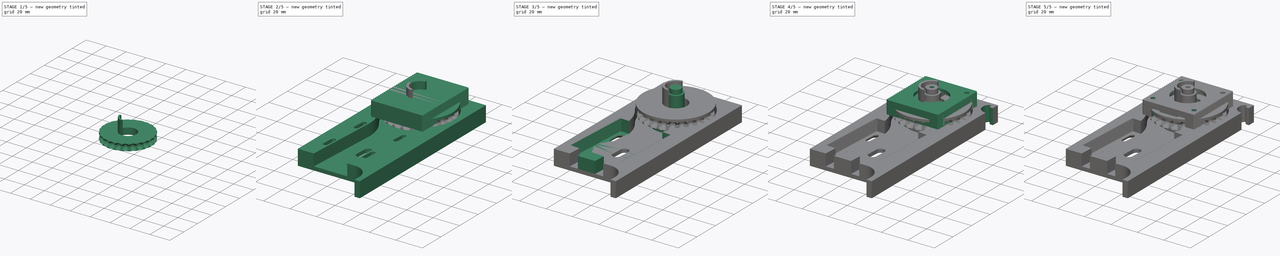
[diagram: build sequence overview — one tinted view per stage of 5, left to right]
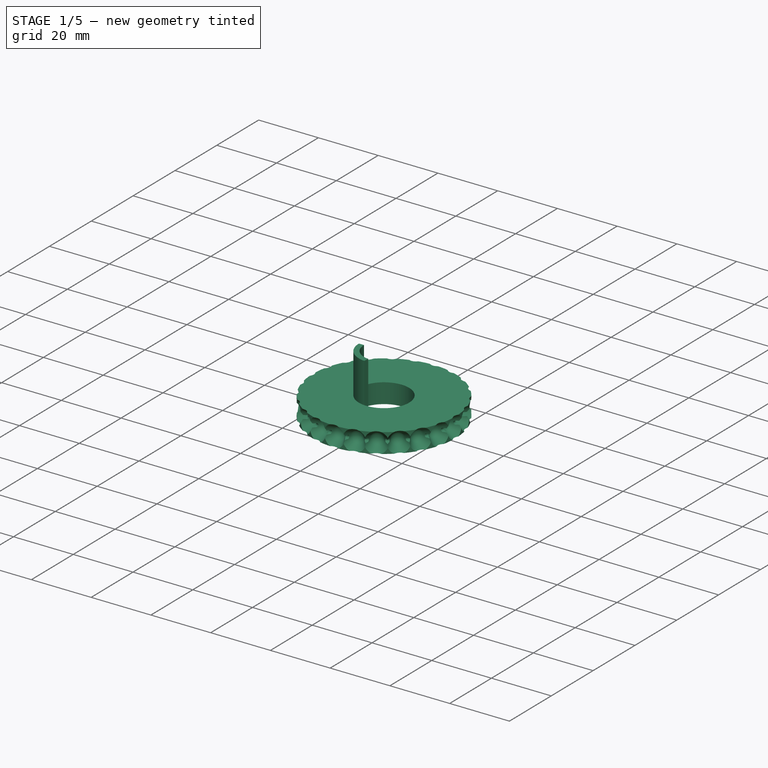
[diagram: stage 1 of 5 — iso view after this stage's code; geometry added in this stage tinted green]
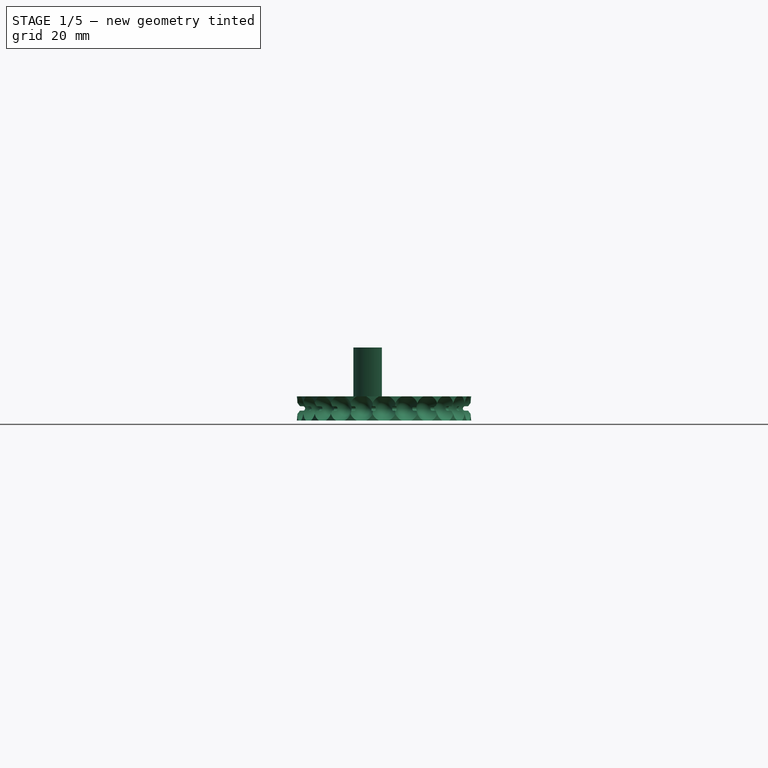
[diagram: stage 1 of 5 — front view after this stage's code; geometry added in this stage tinted green]
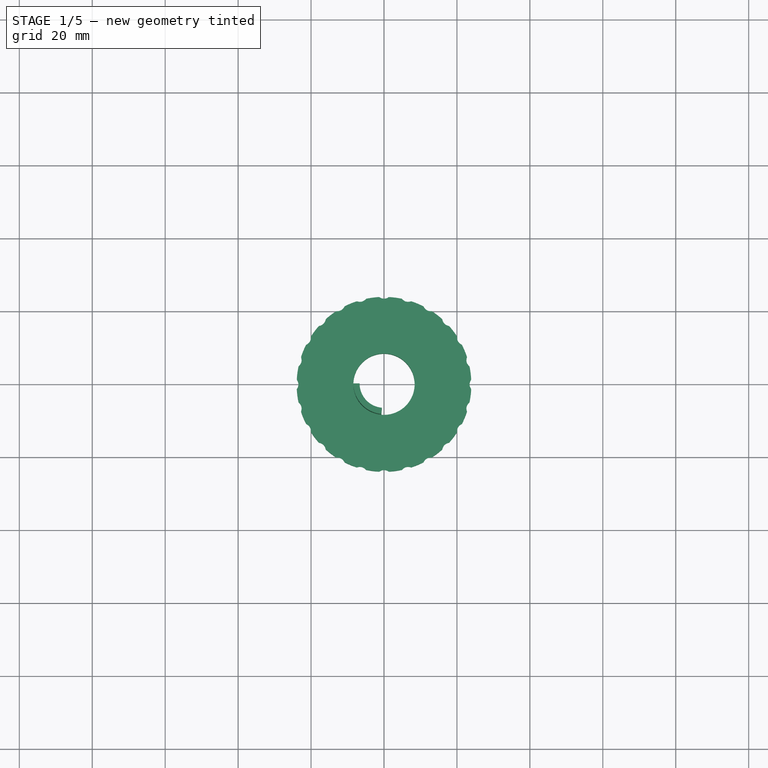
[diagram: stage 1 of 5 — top view after this stage's code; geometry added in this stage tinted green]
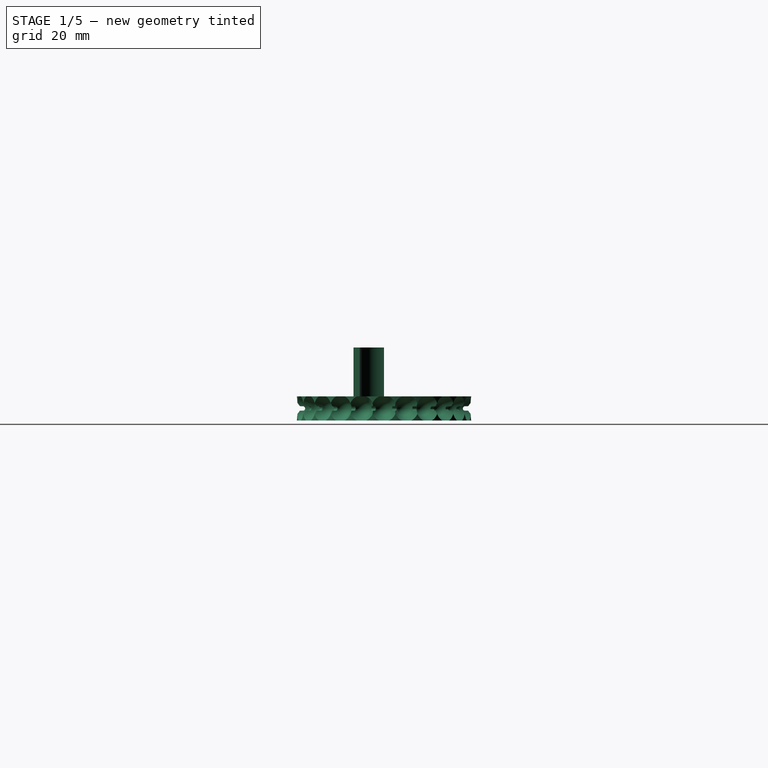
[diagram: stage 1 of 5 — right view after this stage's code; geometry added in this stage tinted green]
FCSTD DOCUMENT  (FreeCAD 0.21R33771 (Git))
Label: integrated-roller-clutch-v3
License: All rights reserved
LicenseURL: http://en.wikipedia.org/wiki/All_rights_reserved
objects: Sketcher::SketchObject×24, PartDesign::Pad×14, PartDesign::SubShapeBinder×10, PartDesign::Pocket×10, PartDesign::Mirrored×9, PartDesign::Body×5, PartDesign::Groove×4, PartDesign::MultiTransform×3, PartDesign::Fillet×2, PartDesign::PolarPattern×2, PartDesign::LinearPattern×2, PartDesign::Chamfer×1, Part::Feature×1, PartDesign::Hole×1
note: 120 computed .brp shape members not serialized (recipe doc carries the construction recipe); baked Part::Feature solids carry a one-line shape summary decoded from their .brp

FEATURE [Sketcher::SketchObject] Sketch003
  FullyConstrained = true
  MapMode = 5
  Support = -> [XY_Plane001]
  expr: Constraints[0] = 5.85 * 24 / pi
  sketch-geometry (1):
    g0: Circle CenterX=0 CenterY=0 CenterZ=0 NormalX=0 NormalY=0 NormalZ=1 AngleXU=0 Radius=22.3454
  constraints (2):
    c: Diameter(g0) = 44.6907
    c: Coincident(g0,g-1)
FEATURE [PartDesign::SubShapeBinder] Binder001
  BindCopyOnChange = 0
  BindMode = 0
  ClaimChildren = false
  Context = -> Body001 [Binder001.]
  Fuse = false
  MakeFace = true
  Offset = 1.6
  OffsetFill = false
  OffsetIntersection = false
  OffsetJoinType = 1
  OffsetOpenResult = false
  PartialLoad = false
  Relative = true
  Support = -> [Sketch003[Edge1]]
  _Version = 2
FEATURE [PartDesign::Pad] Pad
  Direction = (0,0,1)
  Length = 6.6
  Length2 = 10
  Midplane = true
  Profile = -> Binder001
  Type = 0
FEATURE [Sketcher::SketchObject] Sketch004
  ExternalGeometry = -> [Sketch003,Binder001]
  FullyConstrained = true
  MapMode = 5
  Placement = pos=(0,0,0) rot=(1,0,0;1.5708rad)
  Support = -> [XZ_Plane001]
  sketch-geometry (8):
    g0: ArcOfCircle CenterX=22.3454 CenterY=0 CenterZ=0 NormalX=0 NormalY=0 NormalZ=1 AngleXU=0 Radius=0.6 StartAngle=1.5708 EndAngle=4.71239
    g1: ArcOfCircle CenterX=23.9454 CenterY=0 CenterZ=0 NormalX=0 NormalY=0 NormalZ=1 AngleXU=0 Radius=0.6 StartAngle=4.71239 EndAngle=7.85398
    g2: LineSegment StartX=22.3454 StartY=-0.6 StartZ=0 EndX=23.9454 EndY=-0.6 EndZ=0
    g3: LineSegment StartX=23.9454 StartY=0.6 StartZ=0 EndX=22.3454 EndY=0.6 EndZ=0
    g4: ArcOfCircle CenterX=22.3454 CenterY=0 CenterZ=0 NormalX=0 NormalY=0 NormalZ=1 AngleXU=0 Radius=2.3 StartAngle=2.0944 EndAngle=3.14159
    g5: LineSegment StartX=23.9454 StartY=3.57957 StartZ=0 EndX=21.1954 EndY=1.99186 EndZ=0
    g6: LineSegment StartX=20.0454 StartY=3e-16 StartZ=0 EndX=23.9454 EndY=0 EndZ=0
    g7: LineSegment StartX=23.9454 StartY=3.57957 StartZ=0 EndX=23.9454 EndY=0 EndZ=0
  constraints (18):
    c: Tangent(g0,g2) = -1.5708
    c: Tangent(g2,g1) = -1.5708
    c: Tangent(g1,g3) = -1.5708
    c: Tangent(g3,g0) = -1.5708
    c: Equal(g0,g1)
    c: Coincident(g0,g-3)
    c: Diameter(g0) = 1.2
    c: Coincident(g1,g-4)
    c: Tangent(g5,g4) = -1.5708
    c: Coincident(g4,g0)
    c: Diameter(g4) = 4.6
    c: PointOnObject(g4,g-4)
    c: Coincident(g6,g4)
    c: Coincident(g6,g1)
    c: Coincident(g7,g5)
    c: Coincident(g7,g1)
    c: Perpendicular(g6,g7)
    c: Angle(g6,g5) = 0.523599
FEATURE [PartDesign::SubShapeBinder] Binder002
  BindCopyOnChange = 0
  BindMode = 0
  ClaimChildren = false
  Context = -> Body001 [Binder002.]
  Fuse = false
  MakeFace = true
  OffsetFill = false
  OffsetIntersection = false
  OffsetJoinType = 0
  OffsetOpenResult = false
  PartialLoad = false
  Relative = true
  Support = -> [Sketch004[Edge2,Edge1,Edge4,Edge3]]
  _Version = 2
FEATURE [PartDesign::SubShapeBinder] Binder003
  BindCopyOnChange = 0
  BindMode = 0
  ClaimChildren = false
  Context = -> Body001 [Binder003.]
  Fuse = false
  MakeFace = true
  OffsetFill = false
  OffsetIntersection = false
  OffsetJoinType = 0
  OffsetOpenResult = false
  PartialLoad = false
  Relative = true
  Support = -> [Sketch004[Edge5,Edge8,Edge7,Edge6]]
  _Version = 2
FEATURE [PartDesign::Groove] Groove001
  Angle = 360
  Axis = (1e-16,1e-16,1)
  Base = (0,0,0)
  BaseFeature = -> Pad
  Profile = -> Binder002
  ReferenceAxis = -> Z_Axis001
FEATURE [PartDesign::Fillet] Fillet
  Base = -> Groove001 [Edge3,Edge7]
  BaseFeature = -> Groove001
  Radius = 1
  SupportTransform = false
  UseAllEdges = false
FEATURE [PartDesign::Groove] Groove002
  Angle = 360
  Axis = (1,0,0)
  Base = (0,0,0)
  BaseFeature = -> Fillet
  Profile = -> Binder003
  ReferenceAxis = -> X_Axis001
FEATURE [PartDesign::PolarPattern] PolarPattern
  Angle = 360
  Axis = -> Z_Axis001
  BaseFeature = -> Groove002
  Occurrences = 24
  Originals = -> [Groove002]
FEATURE [PartDesign::Body] Body005  label="Bracket"
  Group = -> [Sketch013,Binder009,Binder010,Pad004,Pocket005,Chamfer,Binder011,Pocket010,Sketch020,Pad008,Sketch021,Pad009,Sketch022,Pad010,Sketch023,Pad011,Sketch024,Pad012,Sketch025,Pad013,Hole,Sketch026,Pocket011]
  Origin = -> Origin005
  Tip = -> Pocket011
FEATURE [Sketcher::SketchObject] Sketch027
  FullyConstrained = true
  MapMode = 5
  Placement = pos=(0,0,-3.3) rot=(1,0,0;3.14159rad)
  Support = -> [PolarPattern]
  sketch-geometry (2):
    g0: Circle CenterX=0 CenterY=0 CenterZ=0 NormalX=0 NormalY=0 NormalZ=1 AngleXU=0 Radius=10.15
    g1: Circle CenterX=0 CenterY=0 CenterZ=0 NormalX=0 NormalY=0 NormalZ=1 AngleXU=0 Radius=17
  constraints (4):
    c: Coincident(g0,g-1)
    c: Diameter(g0) = 20.3
    c: Coincident(g1,g0)
    c: Diameter(g1) = 34
FEATURE [PartDesign::Pocket] Pocket012
  BaseFeature = -> PolarPattern
  Direction = (0,0,1)
  Length = 4
  Length2 = 5
  Profile = -> Sketch027
  ReferenceAxis = -> Sketch027 [N_Axis]
  Type = 0
FEATURE [Sketcher::SketchObject] Sketch028
  FullyConstrained = true
  MapMode = 5
  Placement = pos=(0,0,-3.3) rot=(1,0,0;3.14159rad)
  Support = -> [Pocket012]
  sketch-geometry (1):
    g0: Circle CenterX=0 CenterY=0 CenterZ=0 NormalX=0 NormalY=0 NormalZ=1 AngleXU=0 Radius=8.4
  constraints (2):
    c: Coincident(g0,g-1)
    c: Diameter(g0) = 16.8
FEATURE [PartDesign::Pocket] Pocket013
  BaseFeature = -> Pocket012
  Direction = (0,0,1)
  Length = 5
  Length2 = 5
  Profile = -> Sketch028
  ReferenceAxis = -> Sketch028 [N_Axis]
  Type = 1
FEATURE [Sketcher::SketchObject] Sketch029
  ExternalGeometry = -> [Pocket013]
  FullyConstrained = true
  MapMode = 5
  Placement = pos=(0,0,-3.3) rot=(1,0,0;3.14159rad)
  Support = -> [Pocket013]
  expr: Constraints[11] = 170 / 2
  sketch-geometry (4):
    g0: ArcOfCircle CenterX=0 CenterY=0 CenterZ=0 NormalX=0 NormalY=0 NormalZ=1 AngleXU=0 Radius=8.4 StartAngle=1.65806 EndAngle=3.14159
    g1: ArcOfCircle CenterX=0 CenterY=0 CenterZ=0 NormalX=0 NormalY=0 NormalZ=1 AngleXU=0 Radius=6.7 StartAngle=1.65806 EndAngle=3.14159
    g2: LineSegment StartX=-6.7 StartY=8e-16 StartZ=0 EndX=-8.4 EndY=1e-15 EndZ=0
    g3: LineSegment StartX=-0.583943 StartY=6.6745 StartZ=0 EndX=-0.732108 EndY=8.36804 EndZ=0
  constraints (12):
    c: Coincident(g0,g-3)
    c: PointOnObject(g0,g-1)
    c: PointOnObject(g0,g-3)
    c: Coincident(g1,g0)
    c: PointOnObject(g1,g-1)
    c: Diameter(g1) = 13.4
    c: Coincident(g2,g1)
    c: Coincident(g2,g0)
    c: Coincident(g3,g1)
    c: Coincident(g3,g0)
    c: PointOnObject(g0,g3)
    c: Angle(g3,g2) = 1.48353
FEATURE [PartDesign::Pad] Pad014
  BaseFeature = -> Pocket013
  Direction = (0,0,-1)
  Length = 20
  Length2 = 10
  Profile = -> Sketch029
  ReferenceAxis = -> Sketch029 [N_Axis]
  Refine = true
  Reversed = true
  Type = 0
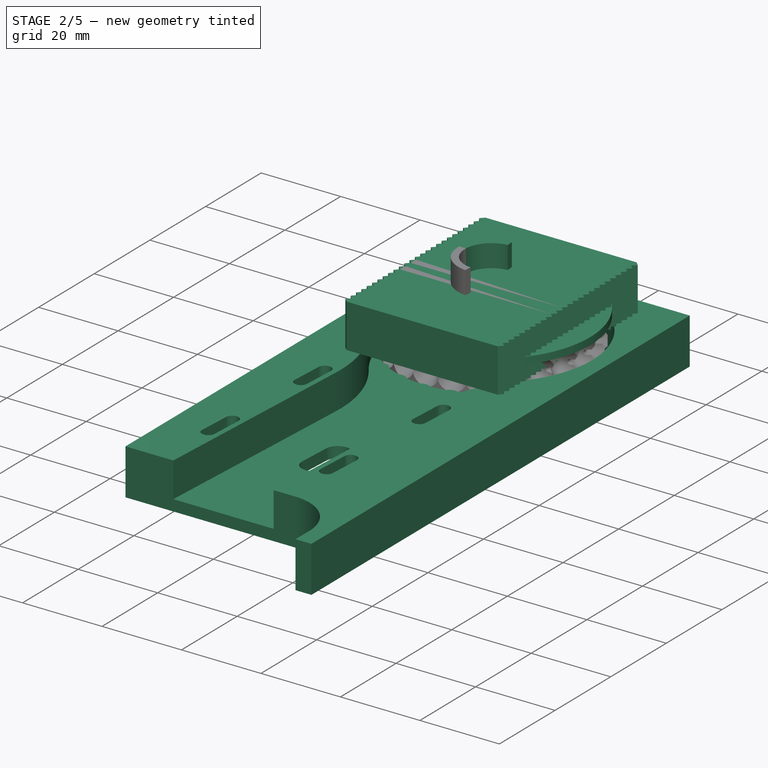
[diagram: stage 2 of 5 — iso view after this stage's code; geometry added in this stage tinted green]
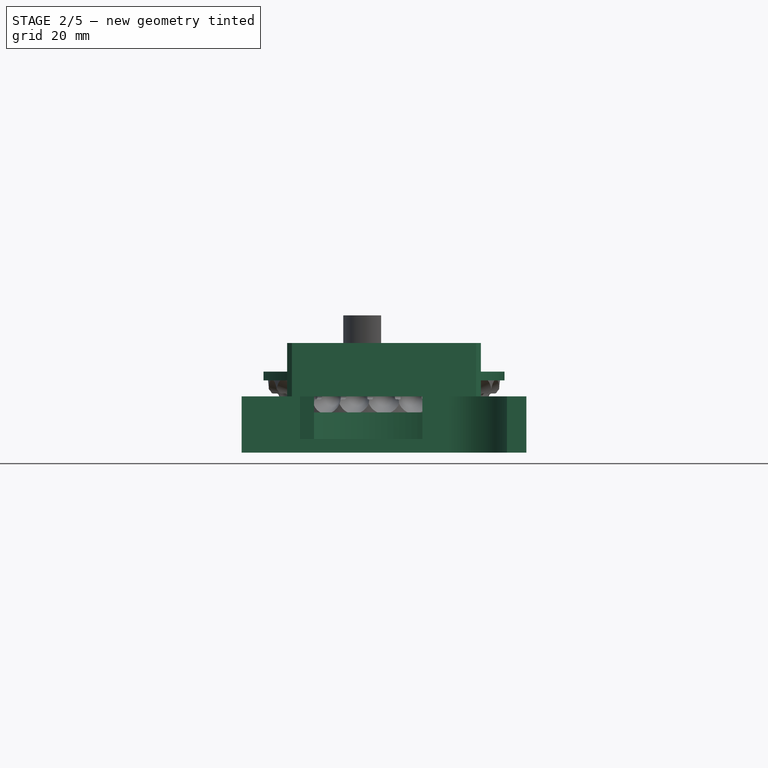
[diagram: stage 2 of 5 — front view after this stage's code; geometry added in this stage tinted green]
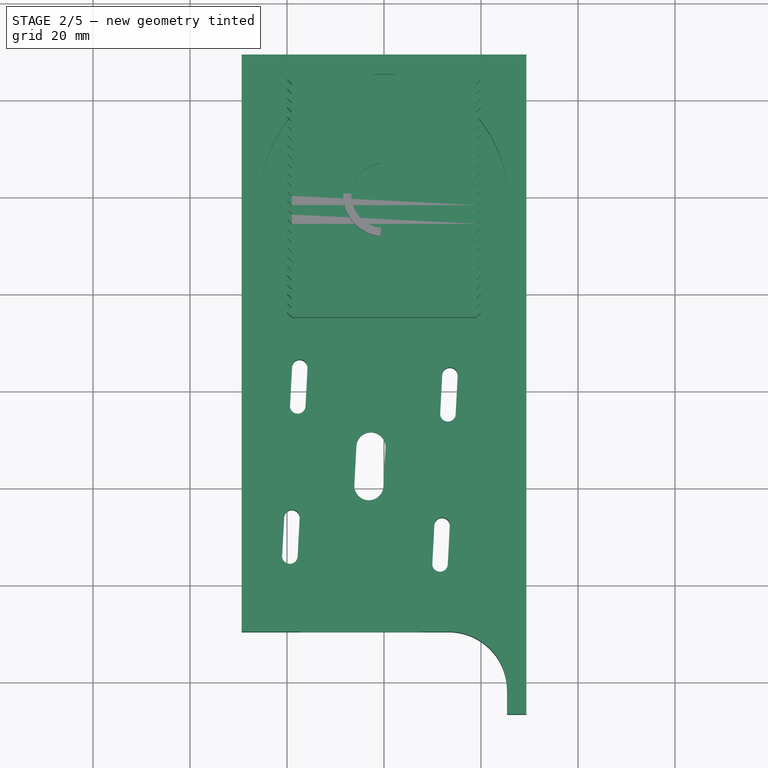
[diagram: stage 2 of 5 — top view after this stage's code; geometry added in this stage tinted green]
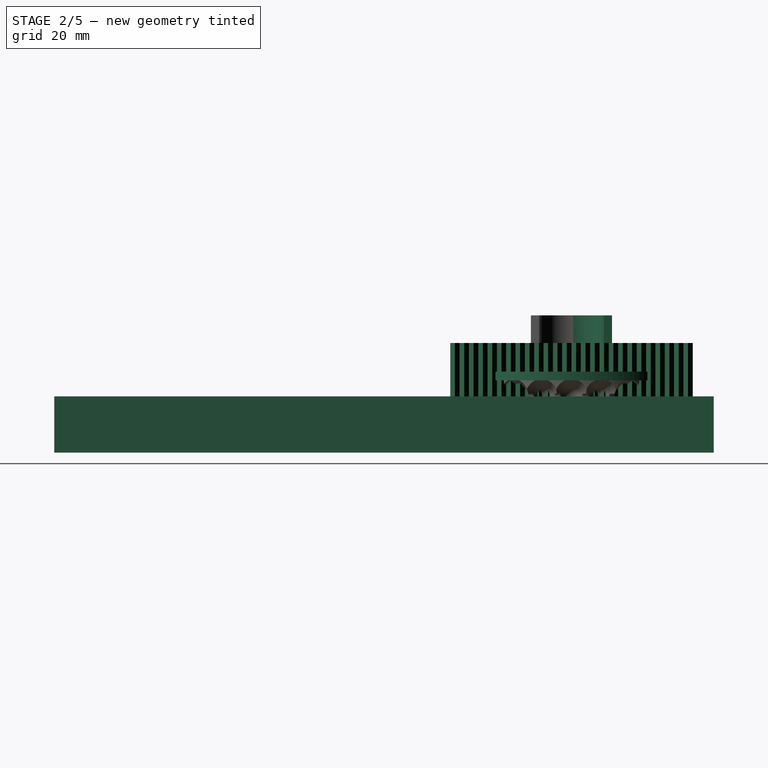
[diagram: stage 2 of 5 — right view after this stage's code; geometry added in this stage tinted green]
FEATURE [Sketcher::SketchObject] Sketch005
  FullyConstrained = true
  MapMode = 5
  Placement = pos=(0,0,0.6) rot=(1,0,0;3.14159rad)
  sketch-geometry (3):
    g0: ArcOfCircle CenterX=0 CenterY=0 CenterZ=0 NormalX=0 NormalY=0 NormalZ=1 AngleXU=0 Radius=2.5 StartAngle=2.2143 EndAngle=7.21048
    g1: LineSegment StartX=-1.5 StartY=2 StartZ=0 EndX=1.5 EndY=2 EndZ=0
    g2: GeomPoint X=0 Y=-2.5 Z=0
  constraints (8):
    c: Coincident(g0,g-1)
    c: Coincident(g1,g0)
    c: Coincident(g1,g0)
    c: Horizontal(g1)
    c: PointOnObject(g2,g0)
    c: PointOnObject(g2,g-2)
    c: DistanceY(g2,g0) = 4.5
    c: Diameter(g0) = 5
FEATURE [Sketcher::SketchObject] Sketch006
  FullyConstrained = true
  MapMode = 5
  Support = -> [XY_Plane002]
  expr: Constraints[0] = 5.85 * 13 / pi
  sketch-geometry (1):
    g0: Circle CenterX=0 CenterY=0 CenterZ=0 NormalX=0 NormalY=0 NormalZ=1 AngleXU=0 Radius=12.1037
  constraints (2):
    c: Diameter(g0) = 24.2075
    c: Coincident(g0,g-1)
FEATURE [Sketcher::SketchObject] Sketch007
  ExternalGeometry = -> [Sketch006,Binder005]
  FullyConstrained = true
  MapMode = 5
  Placement = pos=(0,0,0) rot=(1,0,0;1.5708rad)
  Support = -> [XZ_Plane002]
  sketch-geometry (8):
    g0: ArcOfCircle CenterX=12.1037 CenterY=0 CenterZ=0 NormalX=0 NormalY=0 NormalZ=1 AngleXU=0 Radius=0.6 StartAngle=1.5708 EndAngle=4.71239
    g1: ArcOfCircle CenterX=13.7037 CenterY=0 CenterZ=0 NormalX=0 NormalY=0 NormalZ=1 AngleXU=0 Radius=0.6 StartAngle=4.71239 EndAngle=7.85398
    g2: LineSegment StartX=12.1037 StartY=-0.6 StartZ=0 EndX=13.7037 EndY=-0.6 EndZ=0
    g3: LineSegment StartX=13.7037 StartY=0.6 StartZ=0 EndX=12.1037 EndY=0.6 EndZ=0
    g4: ArcOfCircle CenterX=12.1037 CenterY=0 CenterZ=0 NormalX=0 NormalY=0 NormalZ=1 AngleXU=0 Radius=2.3 StartAngle=2.0944 EndAngle=3.14159
    g5: LineSegment StartX=13.7037 StartY=3.57957 StartZ=0 EndX=10.9537 EndY=1.99186 EndZ=0
    g6: LineSegment StartX=9.80373 StartY=3e-16 StartZ=0 EndX=13.7037 EndY=0 EndZ=0
    g7: LineSegment StartX=13.7037 StartY=3.57957 StartZ=0 EndX=13.7037 EndY=0 EndZ=0
  constraints (18):
    c: Tangent(g0,g2) = -1.5708
    c: Tangent(g2,g1) = -1.5708
    c: Tangent(g1,g3) = -1.5708
    c: Tangent(g3,g0) = -1.5708
    c: Equal(g0,g1)
    c: Coincident(g0,g-3)
    c: Diameter(g0) = 1.2
    c: Coincident(g1,g-4)
    c: Tangent(g5,g4) = -1.5708
    c: Coincident(g4,g0)
    c: Diameter(g4) = 4.6
    c: PointOnObject(g4,g-4)
    c: Coincident(g6,g4)
    c: Coincident(g6,g1)
    c: Coincident(g7,g5)
    c: Coincident(g7,g1)
    c: Perpendicular(g6,g7)
    c: Angle(g6,g5) = 0.523599
FEATURE [PartDesign::Body] Body002  label="Motor Gear"
  Group = -> [Sketch006,Binder005,Pad001,Sketch007,Binder006,Binder007,Groove003,Fillet001,Groove004,PolarPattern001,Sketch005,Binder004,Pocket001]
  Origin = -> Origin002
  Placement = pos=(-2.90698,-55.4192,-5.1) rot=(0,0,1;0rad)
  Tip = -> Pocket001
  expr: .Placement.Base.x = -<<Sketch013>>.Constraints.MotorX
  expr: .Placement.Base.y = -<<Sketch013>>.Constraints.MotorY
  expr: .Placement.Base.z = <<Cover Gear>>.Placement.Base.z
FEATURE [Sketcher::SketchObject] Sketch013
  FullyConstrained = false
  MapMode = 5
  Support = -> [XY_Plane005]
  expr: Constraints[113] = 5.85 * 13 / pi + 1
  expr: Constraints[20] = 5.85 * 24 / pi + 6
  expr: Constraints[96] = 42.3 + 8
  sketch-geometry (52):
    g0: LineSegment StartX=29.3454 StartY=29.3454 StartZ=0 EndX=-29.3454 EndY=29.3454 EndZ=0
    g1: LineSegment StartX=-29.3454 StartY=29.3454 StartZ=0 EndX=-29.3454 EndY=-89.6425 EndZ=0
    g2: LineSegment StartX=29.3454 StartY=-106.643 StartZ=0 EndX=29.3454 EndY=29.3454 EndZ=0
    g3: LineSegment StartX=-29.3454 StartY=-89.6425 StartZ=0 EndX=13.3454 EndY=-89.6425 EndZ=0
    g4: LineSegment StartX=25.3454 StartY=-106.643 StartZ=0 EndX=29.3454 EndY=-106.643 EndZ=0
    g5: LineSegment StartX=25.3454 StartY=-106.643 StartZ=0 EndX=25.3454 EndY=-101.643 EndZ=0
    g6: ArcOfCircle CenterX=13.3454 CenterY=-101.643 CenterZ=0 NormalX=0 NormalY=0 NormalZ=1 AngleXU=0 Radius=12 StartAngle=-9e-16 EndAngle=1.5708
    g7: Circle CenterX=0 CenterY=0 CenterZ=0 NormalX=0 NormalY=0 NormalZ=1 AngleXU=0 Radius=25.3454
    g8: LineSegment StartX=-17.5738 StartY=-39.1285 StartZ=0 EndX=-19.1976 EndY=-70.086 EndZ=0
    g9: LineSegment StartX=-19.1976 StartY=-70.086 StartZ=0 EndX=11.7598 EndY=-71.7098 EndZ=0
    g10: LineSegment StartX=11.7598 StartY=-71.7098 StartZ=0 EndX=13.3837 EndY=-40.7524 EndZ=0
    g11: LineSegment StartX=13.3837 StartY=-40.7524 StartZ=0 EndX=-17.5738 EndY=-39.1285 EndZ=0
    g12: GeomPoint X=-2.90698 Y=-55.4192 Z=0
    g13: Circle CenterX=-2.90698 CenterY=-55.4192 CenterZ=0 NormalX=0 NormalY=0 NormalZ=1 AngleXU=0 Radius=21.9203
    g14: LineSegment StartX=0 StartY=0 StartZ=0 EndX=-7.5696 EndY=-144.308 EndZ=0
    g15: ArcOfCircle CenterX=-3.1165 CenterY=-59.4137 CenterZ=0 NormalX=0 NormalY=0 NormalZ=1 AngleXU=0 Radius=3 StartAngle=3.08919 EndAngle=6.23078
    g16: ArcOfCircle CenterX=-2.69745 CenterY=-51.4247 CenterZ=0 NormalX=0 NormalY=0 NormalZ=1 AngleXU=0 Radius=3 StartAngle=6.23078 EndAngle=9.37237
    g17: LineSegment StartX=-0.120623 StartY=-59.5708 StartZ=0 EndX=0.298435 EndY=-51.5818 EndZ=0
    g18: LineSegment StartX=-5.69333 StartY=-51.2675 StartZ=0 EndX=-6.11239 EndY=-59.2565 EndZ=0
    g19: ArcOfCircle CenterX=-18.9881 CenterY=-66.0915 CenterZ=0 NormalX=0 NormalY=0 NormalZ=1 AngleXU=0 Radius=1.6 StartAngle=6.23078 EndAngle=9.37237
    g20: ArcOfCircle CenterX=-19.4072 CenterY=-74.0805 CenterZ=0 NormalX=0 NormalY=0 NormalZ=1 AngleXU=0 Radius=1.6 StartAngle=3.08919 EndAngle=6.23078
    g21: LineSegment StartX=-20.5859 StartY=-66.0076 StartZ=0 EndX=-21.005 EndY=-73.9967 EndZ=0
    g22: LineSegment StartX=-17.8093 StartY=-74.1643 StartZ=0 EndX=-17.3903 EndY=-66.1753 EndZ=0
    g23: ArcOfCircle CenterX=11.9693 CenterY=-67.7153 CenterZ=0 NormalX=0 NormalY=0 NormalZ=1 AngleXU=0 Radius=1.6 StartAngle=6.23078 EndAngle=9.37237
    g24: ArcOfCircle CenterX=11.5503 CenterY=-75.7043 CenterZ=0 NormalX=0 NormalY=0 NormalZ=1 AngleXU=0 Radius=1.6 StartAngle=3.08919 EndAngle=6.23078
    g25: LineSegment StartX=10.3715 StartY=-67.6315 StartZ=0 EndX=9.95249 EndY=-75.6205 EndZ=0
    g26: LineSegment StartX=13.1481 StartY=-75.7881 StartZ=0 EndX=13.5672 EndY=-67.7991 EndZ=0
    g27: ArcOfCircle CenterX=13.1741 CenterY=-44.7469 CenterZ=0 NormalX=0 NormalY=0 NormalZ=1 AngleXU=0 Radius=1.6 StartAngle=3.08919 EndAngle=6.23078
    g28: ArcOfCircle CenterX=13.5932 CenterY=-36.7579 CenterZ=0 NormalX=0 NormalY=0 NormalZ=1 AngleXU=0 Radius=1.6 StartAngle=6.23078 EndAngle=9.37237
    g29: LineSegment StartX=14.7719 StartY=-44.8307 StartZ=0 EndX=15.191 EndY=-36.8417 EndZ=0
    g30: LineSegment StartX=11.9954 StartY=-36.6741 StartZ=0 EndX=11.5763 EndY=-44.6631 EndZ=0
    g31: ArcOfCircle CenterX=-17.7833 CenterY=-43.123 CenterZ=0 NormalX=0 NormalY=0 NormalZ=1 AngleXU=0 Radius=1.6 StartAngle=3.08919 EndAngle=6.23078
    g32: ArcOfCircle CenterX=-17.3642 CenterY=-35.134 CenterZ=0 NormalX=0 NormalY=0 NormalZ=1 AngleXU=0 Radius=1.6 StartAngle=6.23078 EndAngle=9.37237
    g33: LineSegment StartX=-16.1855 StartY=-43.2068 StartZ=0 EndX=-15.7664 EndY=-35.2178 EndZ=0
    g34: LineSegment StartX=-18.962 StartY=-35.0502 StartZ=0 EndX=-19.3811 EndY=-43.0392 EndZ=0
    g35: Circle CenterX=-2.90698 CenterY=-55.4192 CenterZ=0 NormalX=0 NormalY=0 NormalZ=1 AngleXU=0 Radius=32.861
    g36: LineSegment StartX=-25.3454 StartY=-79.4268 StartZ=0 EndX=-22.7105 EndY=-29.1958 EndZ=0
    g37: LineSegment StartX=-22.7105 StartY=-29.1958 StartZ=0 EndX=19.5314 EndY=-31.4116 EndZ=0
    g38: LineSegment StartX=19.5314 StartY=-31.4116 StartZ=0 EndX=16.8966 EndY=-81.6425 EndZ=0
    g39: LineSegment StartX=16.8966 StartY=-81.6425 StartZ=0 EndX=-25.3454 EndY=-79.4268 EndZ=0
    g40: GeomPoint X=-2.90698 Y=-55.4192 Z=0
    g41: ArcOfCircle CenterX=0 CenterY=0 CenterZ=0 NormalX=0 NormalY=0 NormalZ=1 AngleXU=0 Radius=25.3454 StartAngle=5.55035 EndAngle=10.0528
    g42: ArcOfCircle CenterX=42.5264 CenterY=-38.2755 CenterZ=0 NormalX=0 NormalY=0 NormalZ=1 AngleXU=0 Radius=31.8693 StartAngle=2.40875 EndAngle=3.08919
    g43: ArcOfCircle CenterX=-46.2975 CenterY=-33.6163 CenterZ=0 NormalX=0 NormalY=0 NormalZ=1 AngleXU=0 Radius=31.8693 StartAngle=6.23078 EndAngle=6.91121
    g44: LineSegment StartX=10.7009 StartY=-36.6061 StartZ=0 EndX=7.49357 EndY=-97.7516 EndZ=0
    g45: LineSegment StartX=-14.4719 StartY=-35.2857 StartZ=0 EndX=-17.6793 EndY=-96.4312 EndZ=0
    g46: ArcOfCircle CenterX=-3.1165 CenterY=-59.4137 CenterZ=0 NormalX=0 NormalY=0 NormalZ=1 AngleXU=0 Radius=12.6037 StartAngle=3.08919 EndAngle=6.23078
    g47: ArcOfCircle CenterX=-2.69745 CenterY=-51.4247 CenterZ=0 NormalX=0 NormalY=0 NormalZ=1 AngleXU=0 Radius=12.6037 StartAngle=6.23078 EndAngle=9.37237
    g48: LineSegment StartX=9.46993 StartY=-60.0739 StartZ=0 EndX=9.88898 EndY=-52.0849 EndZ=0
    g49: LineSegment StartX=-15.2839 StartY=-50.7644 StartZ=0 EndX=-15.7029 EndY=-58.7535 EndZ=0
    g50: LineSegment StartX=-15.7664 StartY=-35.2178 StartZ=0 EndX=11.9954 EndY=-36.6741 EndZ=0
    g51: LineSegment StartX=-17.6793 StartY=-96.4312 StartZ=0 EndX=7.49357 EndY=-97.7516 EndZ=0
  constraints (128):
    c: Coincident(g0,g1)
    c: Coincident(g2,g0)
    c: Horizontal(g0)
    c: Vertical(g1)
    c: Vertical(g2)
    c: Coincident(g3,g1)
    c: Coincident(g2,g4)
    c: Coincident(g5,g4)
    c: Tangent(g6,g5) = -1.5708
    c: Tangent(g6,g3) = 1.5708
    c: Perpendicular(g3,g1)
    c: Perpendicular(g5,g4)
    c: Perpendicular(g2,g4)
    c: Distance(g4) = 4
    c: Diameter(g6) = 24
    c: Distance(g5) = 5
    c: Coincident(g7,g-1)
    c: Distance(g7,g2) = 4
    c: Distance(g7,g1) = 4
    c: Distance(g7,g0) = 4
    c: Diameter(g7) = 50.6907
    c: Coincident(g8,g9)
    c: Coincident(g9,g10)
    c: Coincident(g10,g11)
    c: Coincident(g11,g8)
    c: Coincident(g13,g12)
    c: PointOnObject(g9,g13)
    c: PointOnObject(g8,g13)
    c: PointOnObject(g8,g13)
    c: PointOnObject(g10,g13)
    c: Equal(g10,g11)
    c: Equal(g11,g8)
    c: Equal(g8,g9)
    c: Distance(g11) = 31
    c: Coincident(g14,g7)
    c: PointOnObject(g12,g14)
    c: Perpendicular(g14,g11)
    c: Tangent(g15,g17) = -1.5708
    c: Tangent(g17,g16) = -1.5708
    c: Tangent(g16,g18) = -1.5708
    c: Tangent(g18,g15) = -1.5708
    c: Equal(g15,g16)
    c: PointOnObject(g16,g14)
    c: Diameter(g16) = 6
    c: Distance(g15,g16) = 8
    c: Symmetric(g15,g16,g12)
    c: Tangent(g19,g21) = -1.5708
    c: Tangent(g21,g20) = -1.5708
    c: Tangent(g20,g22) = -1.5708
    c: Tangent(g22,g19) = -1.5708
    c: Equal(g19,g20)
    c: PointOnObject(g19,g8)
    c: Tangent(g23,g25) = -1.5708
    c: Tangent(g25,g24) = -1.5708
    c: Tangent(g24,g26) = -1.5708
    c: Tangent(g26,g23) = -1.5708
    c: Equal(g23,g24)
    c: PointOnObject(g23,g10)
    c: Tangent(g27,g29) = -1.5708
    c: Tangent(g29,g28) = -1.5708
    c: Tangent(g28,g30) = -1.5708
    c: Tangent(g30,g27) = -1.5708
    c: Equal(g27,g28)
    c: Tangent(g31,g33) = -1.5708
    c: Tangent(g33,g32) = -1.5708
    c: Tangent(g32,g34) = -1.5708
    c: Tangent(g34,g31) = -1.5708
    c: Equal(g31,g32)
    c: PointOnObject(g32,g8)
    c: PointOnObject(g28,g10)
    c: Equal(g27,g23)
    c: Equal(g23,g19)
    c: Equal(g19,g31)
    c: Equal(g22,g26)
    c: Equal(g26,g29)
    c: Equal(g29,g33)
    c: Equal(g33,g17)
    c: Diameter(g23) = 3.2
    c: Symmetric(g24,g23,g9)
    c: Symmetric(g27,g28,g10)
    c: Symmetric(g31,g32,g8)
    c: Symmetric(g19,g20,g8)
    c: Coincident(g35,g12)
    c: Coincident(g36,g37)
    c: Coincident(g37,g38)
    c: Coincident(g38,g39)
    c: Coincident(g39,g36)
    c: Coincident(g40,g12)
    c: PointOnObject(g37,g35)
    c: PointOnObject(g36,g35)
    c: PointOnObject(g38,g35)
    c: PointOnObject(g36,g35)
    c: Perpendicular(g14,g37)
    c: Equal(g36,g38)
    c: Equal(g37,g39)
    c: Distance(g39) = 42.3
    c: Distance(g38) = 50.3
    c: Distance(g7,g37) = 5
    c: DistanceX(g1,g36) = 4
    c: DistanceY(g3,g38) = 8
    c: Coincident(g41,g7)
    c: Equal(g41,g7)
    c: Tangent(g45,g43) = 1.5708
    c: Tangent(g44,g42) = -1.5708
    c: Tangent(g42,g41) = 1.5708
    c: Tangent(g43,g41) = 1.5708
    c: Tangent(g46,g48) = -1.5708
    c: Tangent(g48,g47) = -1.5708
    c: Tangent(g47,g49) = -1.5708
    c: Tangent(g49,g46) = -1.5708
    c: Equal(g46,g47)
    c: Coincident(g46,g15)
    c: Coincident(g47,g16)
    c: Diameter(g46) = 25.2075
    c: PointOnObject(g47,g45)
    c: PointOnObject(g46,g45)
    c: PointOnObject(g47,g44)
    c: PointOnObject(g46,g44)
    c: Equal(g43,g42)
    c: Coincident(g50,g32)
    c: Coincident(g50,g28)
    c: PointOnObject(g42,g50)
    c: Coincident(g51,g45)
    c: Coincident(g51,g44)
    c: Perpendicular(g44,g51)
    c: Angle(g-2,g14) = 3.08919  'SledAngle'
    c: DistanceX(g12,g41) = 2.90698  'MotorX'
    c: DistanceY(g12,g41) = 55.4192  'MotorY'
FEATURE [PartDesign::SubShapeBinder] Binder009
  BindCopyOnChange = 0
  BindMode = 0
  ClaimChildren = false
  Context = -> Body005 [Binder009.]
  Fuse = false
  MakeFace = true
  OffsetFill = false
  OffsetIntersection = false
  OffsetJoinType = 0
  OffsetOpenResult = false
  PartialLoad = false
  Relative = true
  Support = -> [Sketch013[Edge14,Edge15,Edge13,Edge12,Edge24,Edge25,Edge27,Edge26]]
  _Version = 2
FEATURE [PartDesign::SubShapeBinder] Binder010
  BindCopyOnChange = 0
  BindMode = 0
  ClaimChildren = false
  Context = -> Body005 [Binder010.]
  Fuse = false
  MakeFace = true
  OffsetFill = false
  OffsetIntersection = false
  OffsetJoinType = 0
  OffsetOpenResult = false
  PartialLoad = false
  Relative = true
  Support = -> [Sketch013[Edge30,Edge31,Edge32,Edge33,Edge28,Edge29]]
  _Version = 2
FEATURE [PartDesign::Pad] Pad004
  Direction = (0,0,1)
  Length = 11.6
  Length2 = 10
  Profile = -> Binder009
  Reversed = true
  Type = 0
FEATURE [PartDesign::Pocket] Pocket005
  BaseFeature = -> Pad004
  Direction = (0,0,-1)
  Length = 8.8
  Length2 = 5
  Profile = -> Binder010
  Type = 0
FEATURE [PartDesign::Body] Body006  label="Motor Sled"
  Group = -> [Sketch014,Pad005,MultiTransform002,Mirrored005,LinearPattern001,Mirrored006,Sketch015,Pocket007,Sketch016,Pocket008,Sketch017,Pocket009,Sketch018,Pad006,Mirrored008,MultiTransform003,Mirrored009,Mirrored010]
  Origin = -> Origin006
  Placement = pos=(-2.90698,-55.4192,-8.7) rot=(0,0,-1;0.052406rad)
  Tip = -> MultiTransform003
  expr: .Placement.Base.x = -<<Sketch013>>.Constraints.MotorX
  expr: .Placement.Base.y = -<<Sketch013>>.Constraints.MotorY
  expr: .Placement.Rotation.Angle = 180 ° - <<Sketch013>>.Constraints.SledAngle
FEATURE [Sketcher::SketchObject] Sketch019
  FullyConstrained = true
  MapMode = 5
  Support = -> [XY_Plane007]
  expr: .Constraints.NotchHalfHeight = 42.3 / 22 / 2
  sketch-geometry (4):
    g0: LineSegment StartX=0 StartY=0 StartZ=0 EndX=19 EndY=0 EndZ=0
    g1: LineSegment StartX=19 StartY=0 StartZ=0 EndX=19.9614 EndY=0.961364 EndZ=0
    g2: LineSegment StartX=19.9614 StartY=0.961364 StartZ=0 EndX=0 EndY=0.961364 EndZ=0
    g3: LineSegment StartX=0 StartY=0.961364 StartZ=0 EndX=0 EndY=0 EndZ=0
  constraints (11):
    c: Coincident(g0,g1)
    c: Coincident(g1,g2)
    c: Coincident(g2,g3)
    c: Coincident(g3,g0)
    c: Horizontal(g0)
    c: Horizontal(g2)
    c: Vertical(g3)
    c: Coincident(g0,g-1)
    c: Distance(g3) = 0.961364  'NotchHalfHeight'
    c: Angle(g2,g1) = 0.785398
    c: DistanceX(g0,g0) = 19
FEATURE [PartDesign::LinearPattern] LinearPattern002
  Direction = -> Sketch019 [V_Axis]
  Length = 23.0727
  Occurrences = 13
  expr: Length = (Occurrences - 1) * Sketch019.Constraints.NotchHalfHeight * 2
FEATURE [PartDesign::Pad] Pad007
  Direction = (0,0,1)
  Length = 11
  Length2 = 10
  Profile = -> Sketch019
  ReferenceAxis = -> Sketch019 [N_Axis]
  Type = 0
  expr: Length = 11
FEATURE [PartDesign::Mirrored] Mirrored011
  MirrorPlane = -> Pad007 [Face3]
FEATURE [PartDesign::Mirrored] Mirrored012
  MirrorPlane = -> Pad007 [Face1]
FEATURE [PartDesign::Mirrored] Mirrored013
  MirrorPlane = -> Pad007 [Face4]
FEATURE [PartDesign::MultiTransform] MultiTransform004
  BaseFeature = -> Pad007
  Originals = -> [Pad007]
  Refine = true
  Transformations = -> [Mirrored011,LinearPattern002,Mirrored012,Mirrored013]
FEATURE [PartDesign::Mirrored] Mirrored014
  BaseFeature = -> Pad014
  MirrorPlane = -> Pad014 [Face272]
  Originals = -> [Pad014]
  Refine = true
FEATURE [Sketcher::SketchObject] Sketch030
  ExternalGeometry = -> [Mirrored014]
  FullyConstrained = true
  MapMode = 5
  Placement = pos=(0,0,0.7) rot=(1,0,0;3.14159rad)
  Support = -> [Mirrored014]
  sketch-geometry (2):
    g0: Circle CenterX=0 CenterY=0 CenterZ=0 NormalX=0 NormalY=0 NormalZ=1 AngleXU=0 Radius=11
    g1: Circle CenterX=0 CenterY=0 CenterZ=0 NormalX=0 NormalY=0 NormalZ=1 AngleXU=0 Radius=17
  constraints (4):
    c: Diameter(g0) = 22
    c: Coincident(g1,g0)
    c: Equal(g1,g-3)
    c: Coincident(g-3,g0)
FEATURE [PartDesign::Pocket] Pocket014
  BaseFeature = -> Mirrored014
  Direction = (0,0,1)
  Length = 0.4
  Length2 = 5
  Profile = -> Sketch030
  ReferenceAxis = -> Sketch030 [N_Axis]
  Refine = true
  Type = 0
FEATURE [Sketcher::SketchObject] Sketch031
  ExternalGeometry = -> [Pocket014]
  FullyConstrained = true
  MapMode = 5
  Placement = pos=(0,0,3.3) rot=(0,0,1;0rad)
  Support = -> [Pocket014]
  expr: Constraints[1] = 5.85 * 24 / pi + 5
  sketch-geometry (2):
    g0: Circle CenterX=0 CenterY=0 CenterZ=0 NormalX=0 NormalY=0 NormalZ=1 AngleXU=0 Radius=24.8454
    g1: Circle CenterX=0 CenterY=0 CenterZ=0 NormalX=0 NormalY=0 NormalZ=1 AngleXU=0 Radius=8.4
  constraints (4):
    c: Coincident(g0,g-1)
    c: Diameter(g0) = 49.6907
    c: Coincident(g1,g0)
    c: Equal(g-3,g1)
FEATURE [PartDesign::Pad] Pad015
  BaseFeature = -> Pocket014
  Direction = (0,0,1)
  Length = 1.8
  Length2 = 10
  Profile = -> Sketch031
  ReferenceAxis = -> Sketch031 [N_Axis]
  Refine = true
  Type = 0
FEATURE [PartDesign::Body] Body001  label="Cover Gear"
  Group = -> [Sketch003,Binder001,Pad,Sketch004,Binder002,Binder003,Groove001,Fillet,Groove002,PolarPattern,Sketch027,Pocket012,Sketch028,Pocket013,Sketch029,Pad014,Mirrored014,Sketch030,Pocket014,Sketch031,Pad015]
  Origin = -> Origin001
  Placement = pos=(0,0,-5.1) rot=(0,0,1;0rad)
  Tip = -> Pad015
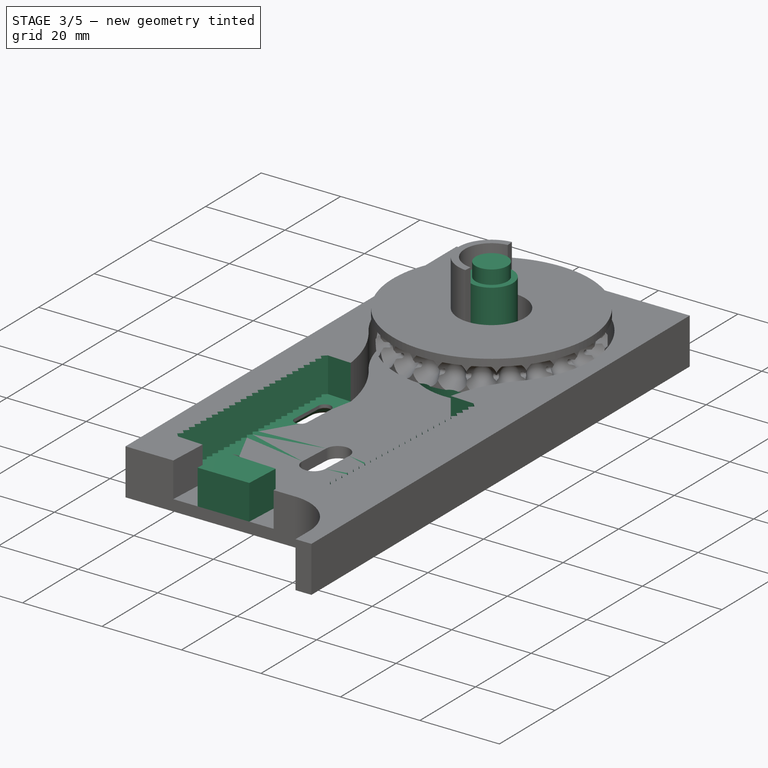
[diagram: stage 3 of 5 — iso view after this stage's code; geometry added in this stage tinted green]
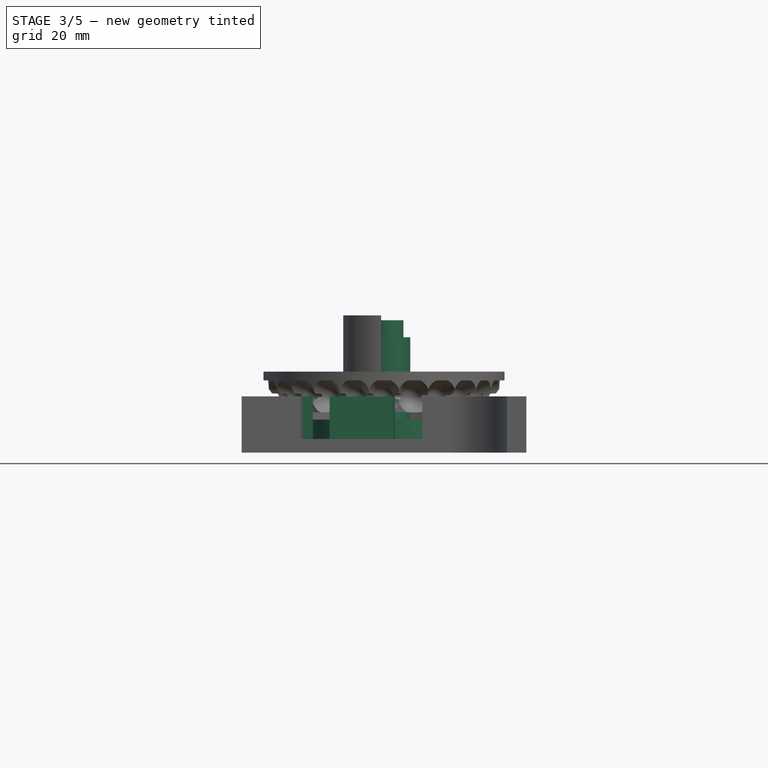
[diagram: stage 3 of 5 — front view after this stage's code; geometry added in this stage tinted green]
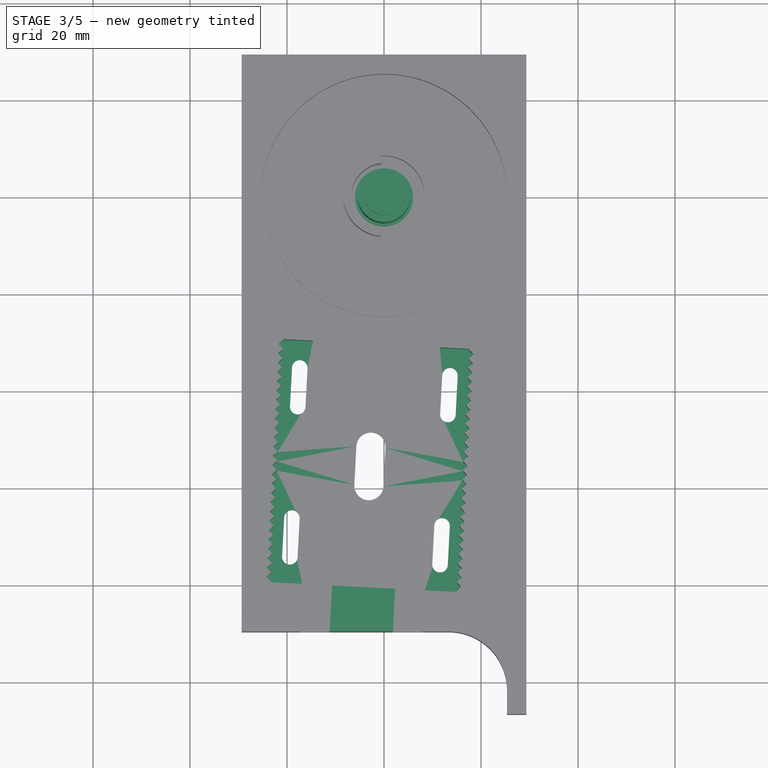
[diagram: stage 3 of 5 — top view after this stage's code; geometry added in this stage tinted green]
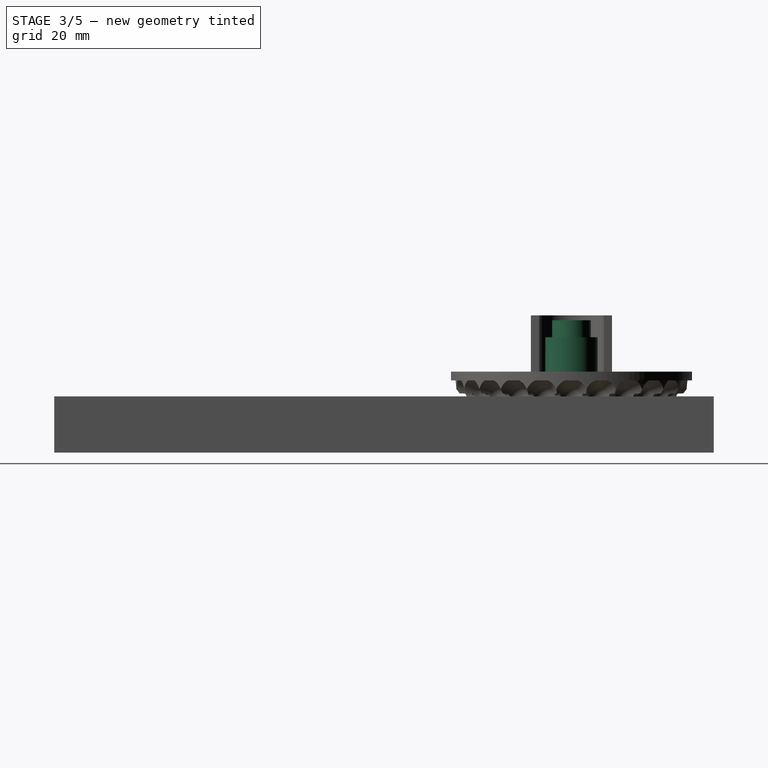
[diagram: stage 3 of 5 — right view after this stage's code; geometry added in this stage tinted green]
FEATURE [PartDesign::Chamfer] Chamfer
  Angle = 45
  Base = -> Pocket005 [Edge51,Edge52,Edge50,Edge49,Edge45,Edge46,Edge47,Edge48,Edge53,Edge54,Edge55,Edge56,Edge59,Edge60,Edge57,Edge58]
  BaseFeature = -> Pocket005
  ChamferType = 0
  FlipDirection = false
  Size = 2
  Size2 = 1
  SupportTransform = false
  UseAllEdges = false
FEATURE [PartDesign::Body] Body007  label="Sled Cutter"
  Group = -> [Sketch019,Pad007,MultiTransform004,Mirrored011,LinearPattern002,Mirrored012,Mirrored013]
  Origin = -> Origin007
  Placement = pos=(-2.90698,-55.4192,0) rot=(0,0,-1;0.052406rad)
  Tip = -> MultiTransform004
  expr: .Placement.Base.x = -<<Sketch013>>.Constraints.MotorX
  expr: .Placement.Base.y = -<<Sketch013>>.Constraints.MotorY
  expr: .Placement.Rotation.Angle = -(180 ° - <<Sketch013>>.Constraints.SledAngle)
FEATURE [PartDesign::SubShapeBinder] Binder011
  BindCopyOnChange = 0
  BindMode = 0
  ClaimChildren = false
  Context = -> Body005 [Binder011.]
  Fuse = false
  MakeFace = true
  Offset = 0.1
  OffsetFill = false
  OffsetIntersection = false
  OffsetJoinType = 1
  OffsetOpenResult = false
  PartialLoad = false
  Relative = true
  Support = -> [Body007[MultiTransform004.Face106]]
  _Version = 2
FEATURE [PartDesign::Pocket] Pocket010
  BaseFeature = -> Chamfer
  Direction = (0,0,-1)
  Length = 19.8
  Length2 = 5
  Profile = -> Binder011
  Refine = true
  Type = 0
FEATURE [Sketcher::SketchObject] Sketch020
  ExternalGeometry = -> [Pocket010]
  FullyConstrained = true
  MapMode = 5
  Placement = pos=(1e-16,2.6e-15,-8.8) rot=(0,0,1;0rad)
  Support = -> [Pocket010]
  sketch-geometry (6):
    g0: LineSegment StartX=-11.2111 StartY=-89.6425 StartZ=0 EndX=1.8068 EndY=-89.6425 EndZ=0
    g1: LineSegment StartX=1.8068 StartY=-89.6425 StartZ=0 EndX=2.26954 EndY=-80.8207 EndZ=0
    g2: LineSegment StartX=2.26954 StartY=-80.8207 StartZ=0 EndX=-10.7126 EndY=-80.1397 EndZ=0
    g3: LineSegment StartX=-10.7126 StartY=-80.1397 StartZ=0 EndX=-11.2111 EndY=-89.6425 EndZ=0
    g4: LineSegment StartX=-17.3232 StartY=-89.6425 StartZ=0 EndX=-11.2111 EndY=-89.6425 EndZ=0
    g5: LineSegment StartX=1.8068 StartY=-89.6425 StartZ=0 EndX=7.91892 EndY=-89.6425 EndZ=0
  constraints (16):
    c: Coincident(g0,g1)
    c: Coincident(g1,g2)
    c: Coincident(g2,g3)
    c: Coincident(g3,g0)
    c: Parallel(g-4,g3)
    c: Parallel(g-3,g1)
    c: PointOnObject(g-3,g0)
    c: PointOnObject(g-4,g0)
    c: PointOnObject(g-3,g2)
    c: PointOnObject(g-4,g2)
    c: Distance(g2) = 13
    c: Coincident(g4,g-4)
    c: Coincident(g4,g0)
    c: Coincident(g5,g-3)
    c: Coincident(g5,g0)
    c: Equal(g5,g4)
FEATURE [PartDesign::Pad] Pad008
  BaseFeature = -> Pocket010
  Direction = (0,-3e-16,1)
  Length = 10
  Length2 = 10
  Profile = -> Sketch020
  ReferenceAxis = -> Sketch020 [N_Axis]
  Refine = true
  Type = 3
  UpToFace = -> Pocket010 [Face33]
FEATURE [Sketcher::SketchObject] Sketch021
  FullyConstrained = true
  MapMode = 5
  Placement = pos=(1e-16,2.6e-15,-8.8) rot=(0,0,1;0rad)
  Support = -> [Pad008]
  sketch-geometry (2):
    g0: Circle CenterX=0 CenterY=0 CenterZ=0 NormalX=0 NormalY=0 NormalZ=1 AngleXU=0 Radius=16.5
    g1: Circle CenterX=0 CenterY=0 CenterZ=0 NormalX=0 NormalY=0 NormalZ=1 AngleXU=0 Radius=11
  constraints (4):
    c: Coincident(g0,g-1)
    c: Coincident(g1,g0)
    c: Diameter(g1) = 22
    c: Diameter(g0) = 33
FEATURE [PartDesign::Pad] Pad009
  BaseFeature = -> Pad008
  Direction = (0,-3e-16,1)
  Length = 0.4
  Length2 = 10
  Profile = -> Sketch021
  ReferenceAxis = -> Sketch021 [N_Axis]
  Refine = true
  Type = 0
FEATURE [Sketcher::SketchObject] Sketch022
  FullyConstrained = false
  MapMode = 5
  Placement = pos=(0,2.3e-15,-8.4) rot=(0,0,1;0rad)
  Support = -> [Pad009]
  sketch-geometry (2):
    g0: Circle CenterX=1e-16 CenterY=1e-16 CenterZ=0 NormalX=0 NormalY=0 NormalZ=1 AngleXU=0 Radius=16.5
    g1: Circle CenterX=1e-16 CenterY=1e-16 CenterZ=0 NormalX=0 NormalY=0 NormalZ=1 AngleXU=0 Radius=13.65
  constraints (2):
    c: Coincident(g1,g0)
    c: Diameter(g1) = 27.3
FEATURE [PartDesign::Pad] Pad010
  BaseFeature = -> Pad009
  Direction = (0,-3e-16,1)
  Length = 3.6
  Length2 = 10
  Profile = -> Sketch022
  ReferenceAxis = -> Sketch022 [N_Axis]
  Refine = true
  Type = 0
FEATURE [Sketcher::SketchObject] Sketch023
  FullyConstrained = true
  MapMode = 5
  Placement = pos=(1e-16,2.6e-15,-8.8) rot=(0,0,1;0rad)
  Support = -> [Pad010]
  sketch-geometry (1):
    g0: Circle CenterX=0 CenterY=0 CenterZ=0 NormalX=0 NormalY=0 NormalZ=1 AngleXU=0 Radius=6
  constraints (2):
    c: Coincident(g0,g-1)
    c: Diameter(g0) = 12
FEATURE [PartDesign::Pad] Pad011
  BaseFeature = -> Pad010
  Direction = (0,-3e-16,1)
  Length = 1
  Length2 = 10
  Profile = -> Sketch023
  ReferenceAxis = -> Sketch023 [N_Axis]
  Type = 0
FEATURE [Sketcher::SketchObject] Sketch024
  FullyConstrained = true
  MapMode = 5
  Placement = pos=(0,2.7e-15,-7.8) rot=(0,0,1;0rad)
  Support = -> [Pad011]
  sketch-geometry (1):
    g0: Circle CenterX=0 CenterY=0 CenterZ=0 NormalX=0 NormalY=0 NormalZ=1 AngleXU=0 Radius=5.4
  constraints (2):
    c: Coincident(g0,g-1)
    c: Diameter(g0) = 10.8
FEATURE [PartDesign::Pad] Pad012
  BaseFeature = -> Pad011
  Direction = (0,-3e-16,1)
  Length = 20
  Length2 = 10
  Profile = -> Sketch024
  ReferenceAxis = -> Sketch024 [N_Axis]
  Type = 0
FEATURE [Sketcher::SketchObject] Sketch025
  FullyConstrained = true
  MapMode = 5
  Placement = pos=(0,-4.6e-15,12.2) rot=(0,0,1;0rad)
  Support = -> [Pad012]
  sketch-geometry (1):
    g0: Circle CenterX=0 CenterY=0 CenterZ=0 NormalX=0 NormalY=0 NormalZ=1 AngleXU=0 Radius=4
  constraints (2):
    c: Coincident(g0,g-1)
    c: Diameter(g0) = 8
FEATURE [PartDesign::Pad] Pad013
  BaseFeature = -> Pad012
  Direction = (0,-4e-16,1)
  Length = 3.5
  Length2 = 10
  Profile = -> Sketch025
  ReferenceAxis = -> Sketch025 [N_Axis]
  Type = 0
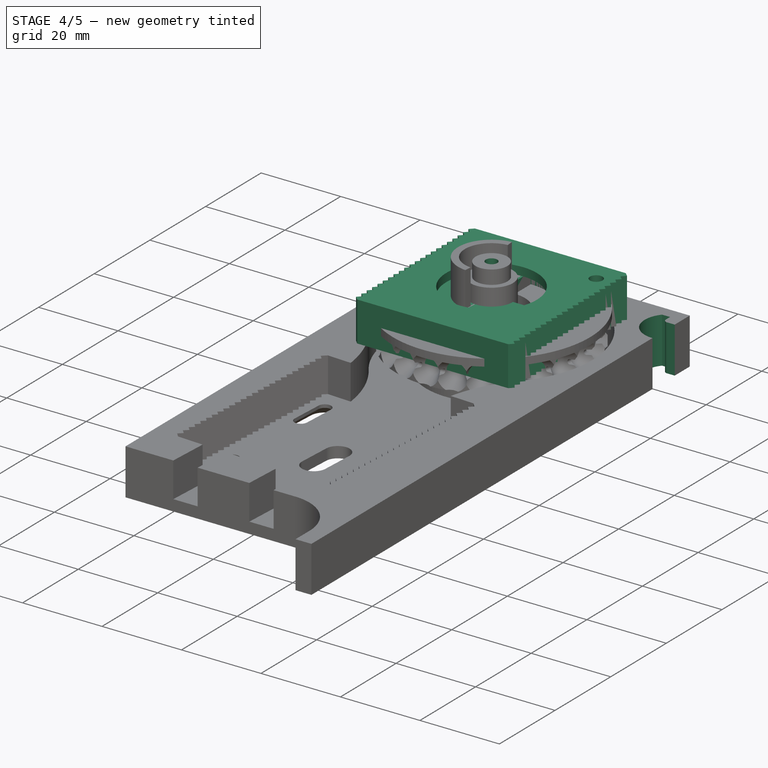
[diagram: stage 4 of 5 — iso view after this stage's code; geometry added in this stage tinted green]
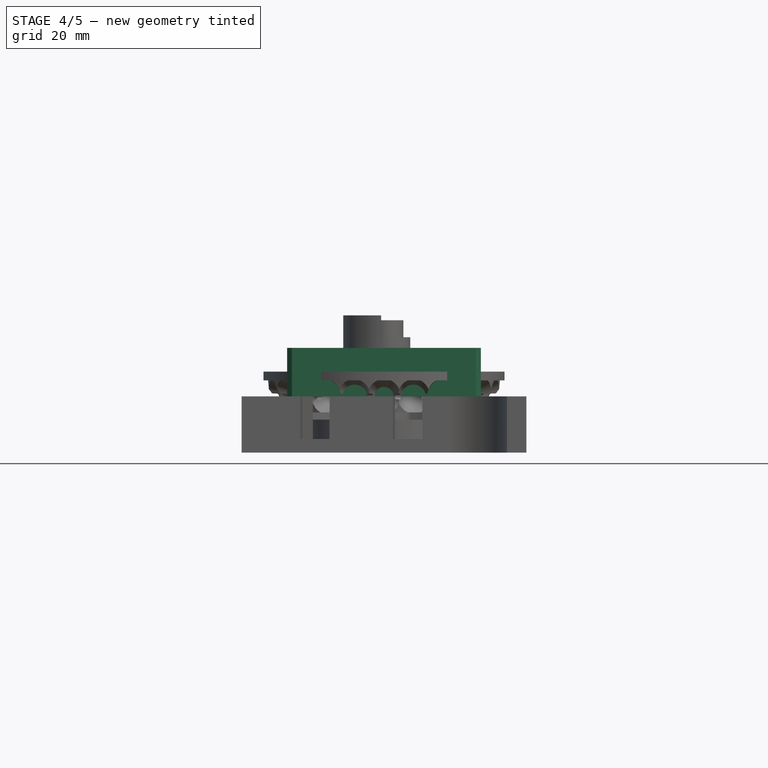
[diagram: stage 4 of 5 — front view after this stage's code; geometry added in this stage tinted green]
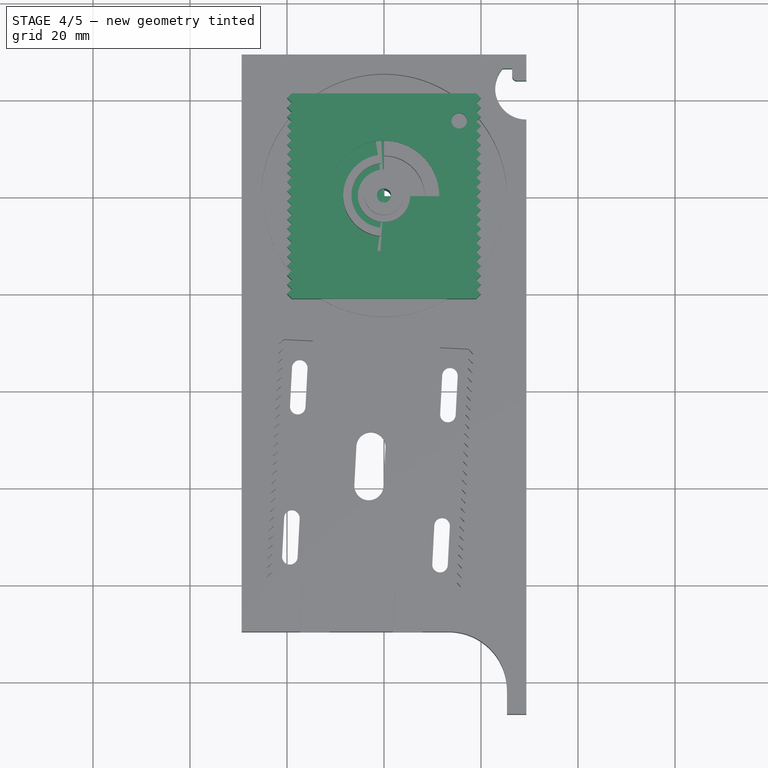
[diagram: stage 4 of 5 — top view after this stage's code; geometry added in this stage tinted green]
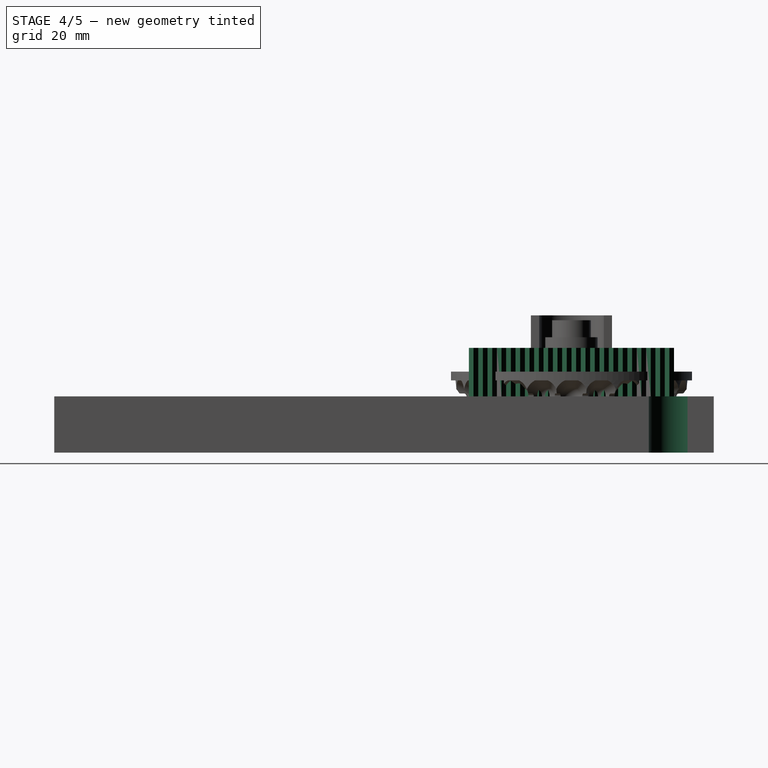
[diagram: stage 4 of 5 — right view after this stage's code; geometry added in this stage tinted green]
FEATURE [Sketcher::SketchObject] Sketch014
  FullyConstrained = true
  MapMode = 5
  Support = -> [XY_Plane006]
  expr: .Constraints.NotchHalfHeight = 42.3 / 22 / 2
  sketch-geometry (4):
    g0: LineSegment StartX=0 StartY=0 StartZ=0 EndX=19 EndY=0 EndZ=0
    g1: LineSegment StartX=19 StartY=0 StartZ=0 EndX=19.9614 EndY=0.961364 EndZ=0
    g2: LineSegment StartX=19.9614 StartY=0.961364 StartZ=0 EndX=0 EndY=0.961364 EndZ=0
    g3: LineSegment StartX=0 StartY=0.961364 StartZ=0 EndX=0 EndY=0 EndZ=0
  constraints (11):
    c: Coincident(g0,g1)
    c: Coincident(g1,g2)
    c: Coincident(g2,g3)
    c: Coincident(g3,g0)
    c: Horizontal(g0)
    c: Horizontal(g2)
    c: Vertical(g3)
    c: Coincident(g0,g-1)
    c: Distance(g3) = 0.961364  'NotchHalfHeight'
    c: Angle(g2,g1) = 0.785398
    c: DistanceX(g0,g0) = 19
FEATURE [PartDesign::LinearPattern] LinearPattern001
  Direction = -> Sketch014 [V_Axis]
  Length = 19.2273
  Occurrences = 11
  expr: Length = (Occurrences - 1) * Sketch014.Constraints.NotchHalfHeight * 2
FEATURE [PartDesign::Pad] Pad005
  Direction = (0,0,1)
  Length = 10
  Length2 = 10
  Profile = -> Sketch014
  ReferenceAxis = -> Sketch014 [N_Axis]
  Type = 0
FEATURE [PartDesign::Mirrored] Mirrored005
  MirrorPlane = -> Pad005 [Face3]
FEATURE [Part::Feature] Pulsivo_Stepper_17HS8401S
  Placement = pos=(-2.90698,-55.4192,48.5) rot=(0.999315,-0.026168,0.026168;4.7117rad)
  shape: bbox 44.46 x 49.71 x 69.31 mm, 192 faces, 0 solids (baked)
  expr: .Placement.Base.x = -<<Sketch013>>.Constraints.MotorX
  expr: .Placement.Base.y = -<<Sketch013>>.Constraints.MotorY
FEATURE [PartDesign::Mirrored] Mirrored006
  MirrorPlane = -> Pad005 [Face1]
FEATURE [PartDesign::Mirrored] Mirrored008
  MirrorPlane = -> Pad005 [Face4]
FEATURE [PartDesign::MultiTransform] MultiTransform002
  BaseFeature = -> Pad005
  Originals = -> [Pad005]
  Refine = true
  Transformations = -> [Mirrored005,LinearPattern001,Mirrored006,Mirrored008]
FEATURE [Sketcher::SketchObject] Sketch015
  ExternalGeometry = -> [MultiTransform002]
  FullyConstrained = true
  MapMode = 5
  Placement = pos=(0,0,10) rot=(0,0,1;0rad)
  Support = -> [MultiTransform002]
  expr: Constraints[1] = 31 / 2
  expr: Constraints[2] = 31 / 2
  sketch-geometry (1):
    g0: Circle CenterX=15.5 CenterY=15.5 CenterZ=0 NormalX=0 NormalY=0 NormalZ=1 AngleXU=0 Radius=1.6
  constraints (3):
    c: Diameter(g0) = 3.2
    c: DistanceX(g-1,g0) = 15.5
    c: DistanceY(g-1,g0) = 15.5
FEATURE [PartDesign::Pocket] Pocket007
  BaseFeature = -> MultiTransform002
  Direction = (0,0,-1)
  Length = 5
  Length2 = 5
  Profile = -> Sketch015
  ReferenceAxis = -> Sketch015 [N_Axis]
  Type = 1
FEATURE [Sketcher::SketchObject] Sketch016
  FullyConstrained = true
  MapMode = 5
  Placement = pos=(0,0,10) rot=(0,0,1;0rad)
  Support = -> [Pocket007]
  sketch-geometry (1):
    g0: Circle CenterX=0 CenterY=0 CenterZ=0 NormalX=0 NormalY=0 NormalZ=1 AngleXU=0 Radius=11.4
  constraints (2):
    c: Coincident(g0,g-1)
    c: Diameter(g0) = 22.8
FEATURE [PartDesign::Pocket] Pocket008
  BaseFeature = -> Pocket007
  Direction = (0,0,-1)
  Length = 2.1
  Length2 = 5
  Profile = -> Sketch016
  ReferenceAxis = -> Sketch016 [N_Axis]
  Type = 0
FEATURE [Sketcher::SketchObject] Sketch017
  ExternalGeometry = -> [Pocket008]
  FullyConstrained = false
  MapMode = 5
  Placement = pos=(0,0,7.9) rot=(0,0,1;0rad)
  Support = -> [Pocket008]
  expr: Constraints[9] = 5.85 * 13 / pi + 4
  sketch-geometry (9):
    g0: ArcOfCircle CenterX=0 CenterY=0 CenterZ=0 NormalX=0 NormalY=0 NormalZ=1 AngleXU=0 Radius=14.1037 StartAngle=1.06303 EndAngle=1.5708
    g1: ArcOfCircle CenterX=0 CenterY=0 CenterZ=0 NormalX=0 NormalY=0 NormalZ=1 AngleXU=0 Radius=14.1037 StartAngle=0 EndAngle=0.14407
    g2: ArcOfCircle CenterX=145.786 CenterY=21.15 CenterZ=0 NormalX=0 NormalY=0 NormalZ=1 AngleXU=0 Radius=133.209 StartAngle=3.14159 EndAngle=3.28566
    g3: ArcOfCircle CenterX=145.786 CenterY=21.15 CenterZ=0 NormalX=0 NormalY=0 NormalZ=1 AngleXU=0 Radius=139.209 StartAngle=3.14159 EndAngle=3.20503
    g4: LineSegment StartX=86.457 StartY=-98.1168 StartZ=0 EndX=86.9914 EndY=-97.0424 EndZ=0
    g5: LineSegment StartX=6.57755 StartY=21.15 StartZ=0 EndX=12.5775 EndY=21.15 EndZ=0
    g6: LineSegment StartX=9e-16 StartY=14.1037 StartZ=0 EndX=0 EndY=0 EndZ=0
    g7: LineSegment StartX=0 StartY=0 StartZ=0 EndX=14.1037 EndY=0 EndZ=0
    g8: LineSegment StartX=12.7026 StartY=15.3787 StartZ=0 EndX=13.9015 EndY=15.4307 EndZ=0
  constraints (27):
    c: Coincident(g0,g-1)
    c: PointOnObject(g0,g-2)
    c: Coincident(g1,g0)
    c: PointOnObject(g1,g-1)
    c: Coincident(g3,g2)
    c: Coincident(g3,g0)
    c: PointOnObject(g3,g-3)
    c: PointOnObject(g2,g-3)
    c: Tangent(g2,g1) = 1.5708
    c: Diameter(g1) = 28.2075
    c: Equal(g0,g1)
    c: PointOnObject(g4,g2)
    c: Perpendicular(g2,g4)
    c: Distance(g4) = 1.2
    c: Coincident(g5,g3)
    c: Coincident(g5,g2)
    c: Coincident(g6,g0)
    c: Coincident(g6,g0)
    c: Coincident(g7,g0)
    c: Coincident(g7,g1)
    c: Distance(g5) = 6
    c: Perpendicular(g2,g-3)
    c: PointOnObject(g8,g2)
    c: PointOnObject(g8,g-4)
    c: Perpendicular(g-4,g8)
    c: Perpendicular(g2,g8)
    c: Distance(g8) = 1.2
FEATURE [PartDesign::Pocket] Pocket009
  BaseFeature = -> Pocket008
  Direction = (0,0,-1)
  Length = 5
  Length2 = 5
  Profile = -> Sketch017
  ReferenceAxis = -> Sketch017 [N_Axis]
  Type = 1
FEATURE [PartDesign::Hole] Hole
  BaseFeature = -> Pad013
  CustomThreadClearance = 0
  Depth = 304.676
  DepthType = 1
  Diameter = 2.9
  DrillForDepth = false
  DrillPoint = 1
  DrillPointAngle = 118
  HoleCutCountersinkAngle = 90
  HoleCutCustomValues = false
  HoleCutDepth = 0
  HoleCutDiameter = 6.1
  HoleCutType = 0
  ModelThread = false
  Profile = -> Pad013 [Edge485]
  Tapered = false
  TaperedAngle = 90
  ThreadClass = 0
  ThreadDepth = 304.676
  ThreadDepthType = 0
  ThreadDirection = 0
  ThreadFit = 0
  ThreadSize = 0
  ThreadType = 0
  Threaded = false
  UseCustomThreadClearance = false
FEATURE [Sketcher::SketchObject] Sketch026
  ExternalGeometry = -> [Hole]
  FullyConstrained = false
  MapMode = 5
  Support = -> [Hole]
  sketch-geometry (7):
    g0: LineSegment StartX=29.3454 StartY=23.9343 StartZ=0 EndX=27.4229 EndY=23.9343 EndZ=0
    g1: LineSegment StartX=26.4229 StartY=24.9343 StartZ=0 EndX=26.4229 EndY=26.4343 EndZ=0
    g2: LineSegment StartX=26.4229 StartY=26.4343 StartZ=0 EndX=24.4229 EndY=26.4343 EndZ=0
    g3: ArcOfCircle CenterX=29.3104 CenterY=22.3218 CenterZ=0 NormalX=0 NormalY=0 NormalZ=1 AngleXU=0 Radius=6.38757 StartAngle=2.4421 EndAngle=4.71785
    g4: LineSegment StartX=29.3454 StartY=15.9343 StartZ=0 EndX=29.3454 EndY=23.9343 EndZ=0
    g5: ArcOfCircle CenterX=27.4229 CenterY=24.9343 CenterZ=0 NormalX=0 NormalY=0 NormalZ=1 AngleXU=0 Radius=1 StartAngle=3.14159 EndAngle=4.71239
    g6: GeomPoint X=22.9229 Y=22.3343 Z=0
  constraints (18):
    c: Horizontal(g0)
    c: Vertical(g1)
    c: Coincident(g2,g1)
    c: Horizontal(g2)
    c: Coincident(g3,g2)
    c: Coincident(g4,g3)
    c: Coincident(g4,g0)
    c: Tangent(g1,g5) = 1.5708
    c: Tangent(g0,g5) = 1.5708
    c: Distance(g4) = 8
    c: DistanceY(g0,g1) = 2.5
    c: PointOnObject(g6,g3)
    c: DistanceY(g6,g2) = 4.1
    c: Radius(g5) = 1
    c: Distance(g2) = 2
    c: DistanceX(g6,g1) = 3.5
    c: PointOnObject(g0,g-3)
    c: PointOnObject(g3,g-3)
FEATURE [PartDesign::Pocket] Pocket011
  BaseFeature = -> Hole
  Direction = (0,0,-1)
  Length = 5
  Length2 = 5
  Profile = -> Sketch026
  ReferenceAxis = -> Sketch026 [N_Axis]
  Type = 1
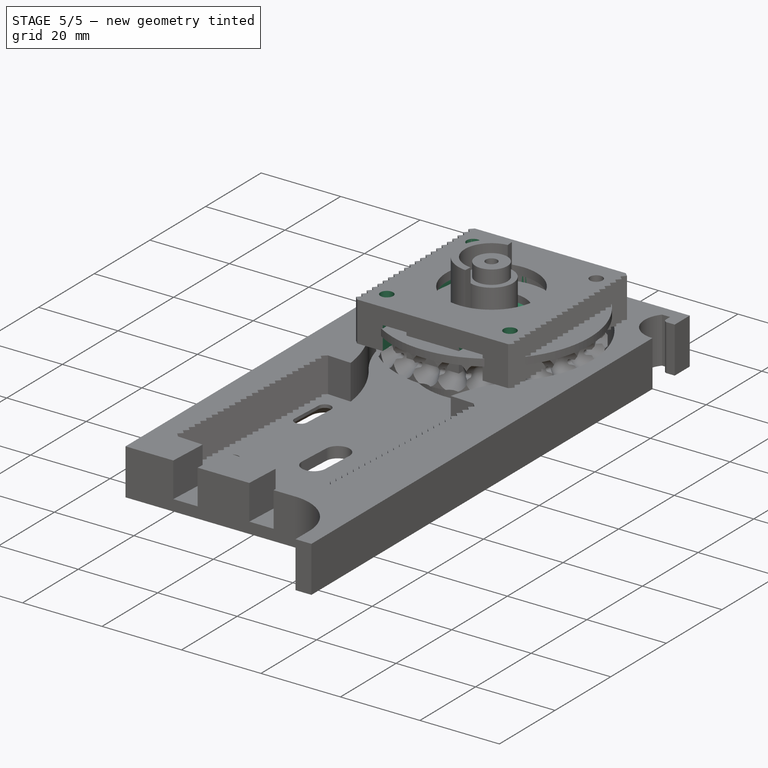
[diagram: stage 5 of 5 — iso view after this stage's code; geometry added in this stage tinted green]
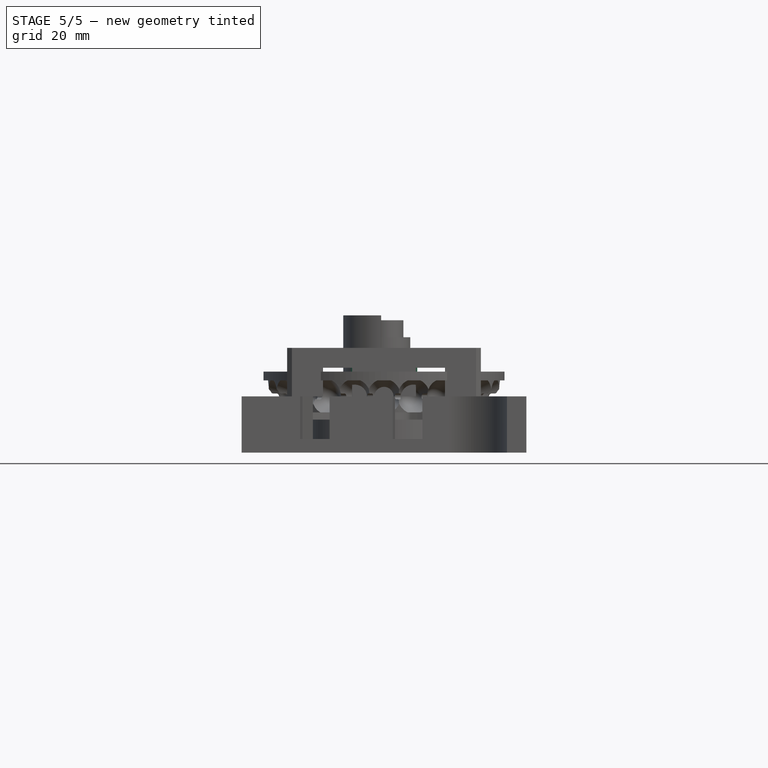
[diagram: stage 5 of 5 — front view after this stage's code; geometry added in this stage tinted green]
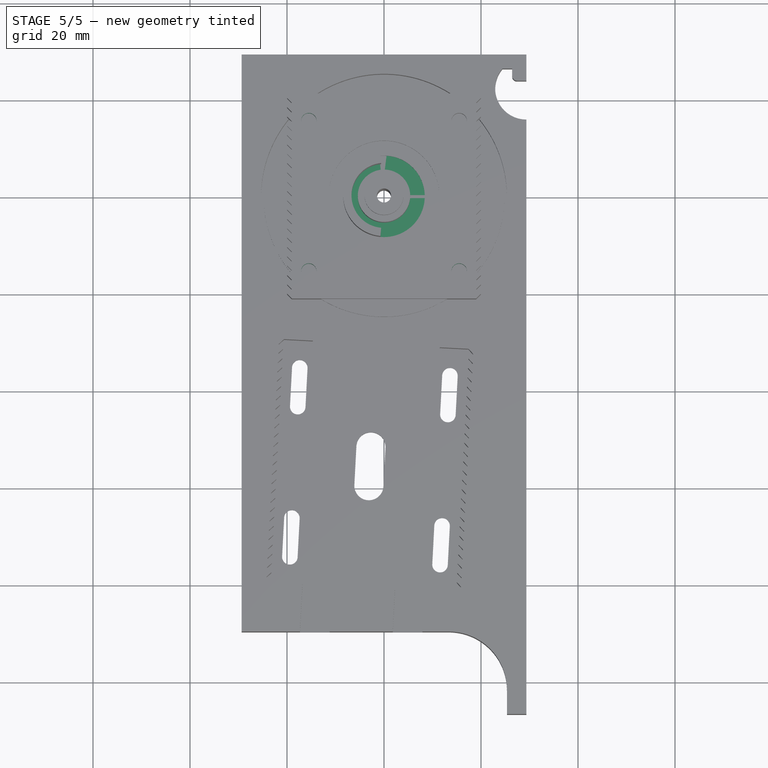
[diagram: stage 5 of 5 — top view after this stage's code; geometry added in this stage tinted green]
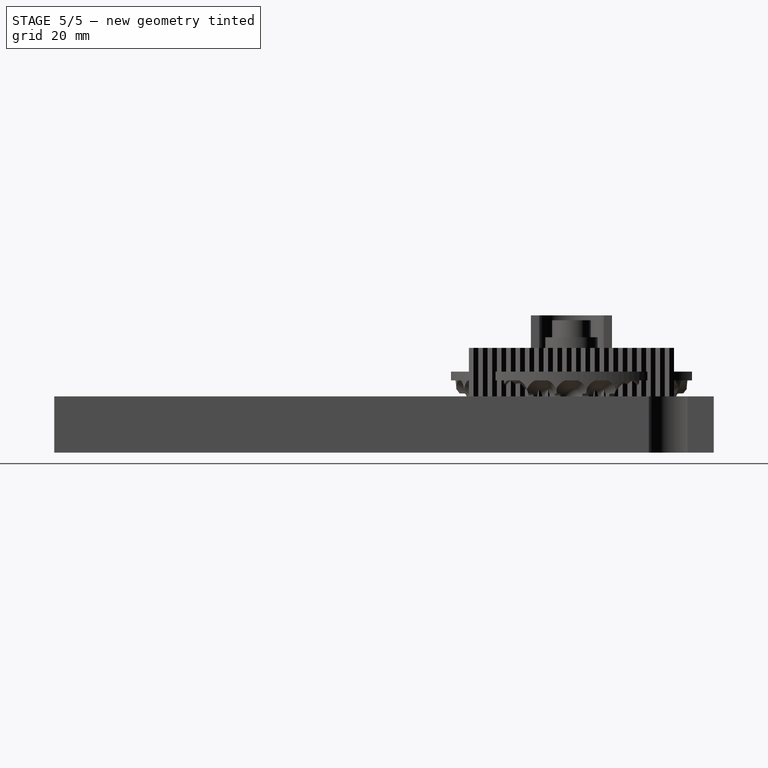
[diagram: stage 5 of 5 — right view after this stage's code; geometry added in this stage tinted green]
FEATURE [PartDesign::SubShapeBinder] Binder004
  BindCopyOnChange = 0
  BindMode = 0
  ClaimChildren = false
  Context = -> Body002 [Binder004.]
  Fuse = false
  MakeFace = true
  Offset = 0.1
  OffsetFill = false
  OffsetIntersection = false
  OffsetJoinType = 1
  OffsetOpenResult = false
  PartialLoad = false
  Relative = true
  Support = -> [Sketch005]
  _Version = 2
FEATURE [PartDesign::SubShapeBinder] Binder005
  BindCopyOnChange = 0
  BindMode = 0
  ClaimChildren = false
  Context = -> Body002 [Binder005.]
  Fuse = false
  MakeFace = true
  Offset = 1.6
  OffsetFill = false
  OffsetIntersection = false
  OffsetJoinType = 1
  OffsetOpenResult = false
  PartialLoad = false
  Relative = true
  Support = -> [Sketch006[Edge1]]
  _Version = 2
FEATURE [PartDesign::SubShapeBinder] Binder006
  BindCopyOnChange = 0
  BindMode = 0
  ClaimChildren = false
  Context = -> Body002 [Binder006.]
  Fuse = false
  MakeFace = true
  OffsetFill = false
  OffsetIntersection = false
  OffsetJoinType = 0
  OffsetOpenResult = false
  PartialLoad = false
  Relative = true
  Support = -> [Sketch007[Edge2,Edge1,Edge4,Edge3]]
  _Version = 2
FEATURE [PartDesign::SubShapeBinder] Binder007
  BindCopyOnChange = 0
  BindMode = 0
  ClaimChildren = false
  Context = -> Body002 [Binder007.]
  Fuse = false
  MakeFace = true
  OffsetFill = false
  OffsetIntersection = false
  OffsetJoinType = 0
  OffsetOpenResult = false
  PartialLoad = false
  Relative = true
  Support = -> [Sketch007[Edge5,Edge8,Edge7,Edge6]]
  _Version = 2
FEATURE [PartDesign::Pad] Pad001
  Direction = (0,0,1)
  Length = 6.6
  Length2 = 10
  Midplane = true
  Profile = -> Binder005
  Type = 0
FEATURE [PartDesign::Groove] Groove003
  Angle = 360
  Axis = (1e-16,1e-16,1)
  Base = (0,0,0)
  BaseFeature = -> Pad001
  Profile = -> Binder006
  ReferenceAxis = -> Z_Axis002
FEATURE [PartDesign::Fillet] Fillet001
  Base = -> Groove003 [Edge3,Edge7]
  BaseFeature = -> Groove003
  Radius = 1
  SupportTransform = false
  UseAllEdges = false
FEATURE [PartDesign::Groove] Groove004
  Angle = 360
  Axis = (1,0,0)
  Base = (0,0,0)
  BaseFeature = -> Fillet001
  Profile = -> Binder007
  ReferenceAxis = -> X_Axis002
FEATURE [PartDesign::PolarPattern] PolarPattern001
  Angle = 360
  Axis = -> Z_Axis002
  BaseFeature = -> Groove004
  Occurrences = 13
  Originals = -> [Groove004]
FEATURE [PartDesign::Pocket] Pocket001
  BaseFeature = -> PolarPattern001
  Direction = (0,0,-1)
  Length = 5
  Length2 = 5
  Midplane = true
  Profile = -> Binder004
  Type = 1
FEATURE [Sketcher::SketchObject] Sketch018
  ExternalGeometry = -> [Pocket009]
  FullyConstrained = true
  MapMode = 5
  Placement = pos=(0,0,7.9) rot=(1,0,0;3.14159rad)
  Support = -> [Pocket009]
  sketch-geometry (4):
    g0: LineSegment StartX=6.57755 StartY=-21.15 StartZ=0 EndX=12.5775 EndY=-21.15 EndZ=0
    g1: ArcOfCircle CenterX=145.786 CenterY=-21.15 CenterZ=0 NormalX=0 NormalY=0 NormalZ=1 AngleXU=0 Radius=139.209 StartAngle=3.07815 EndAngle=3.14159
    g2: ArcOfCircle CenterX=145.786 CenterY=-21.15 CenterZ=0 NormalX=0 NormalY=0 NormalZ=1 AngleXU=0 Radius=133.209 StartAngle=2.99752 EndAngle=3.14159
    g3: ArcOfCircle CenterX=0 CenterY=-5e-15 CenterZ=0 NormalX=0 NormalY=0 NormalZ=1 AngleXU=0 Radius=14.1037 StartAngle=5.22015 EndAngle=6.13911
  constraints (10):
    c: Coincident(g0,g-4)
    c: Coincident(g0,g-3)
    c: Coincident(g1,g0)
    c: Coincident(g1,g-5)
    c: Coincident(g2,g1)
    c: Coincident(g2,g0)
    c: Coincident(g2,g-3)
    c: PointOnObject(g3,g-2)
    c: Coincident(g3,g1)
    c: Coincident(g3,g2)
FEATURE [PartDesign::Pad] Pad006
  BaseFeature = -> Pocket009
  Direction = (0,0,-1)
  Length = 2
  Length2 = 10
  Profile = -> Sketch018
  ReferenceAxis = -> Sketch018 [N_Axis]
  Refine = true
  Type = 0
FEATURE [PartDesign::Mirrored] Mirrored009
  MirrorPlane = -> Pad006 [Face28]
FEATURE [PartDesign::Mirrored] Mirrored010
  MirrorPlane = -> Pad006 [Face29]
FEATURE [PartDesign::MultiTransform] MultiTransform003
  BaseFeature = -> Pad006
  Originals = -> [Pocket007,Pocket008,Pocket009,Pad006]
  Refine = true
  Transformations = -> [Mirrored009,Mirrored010]
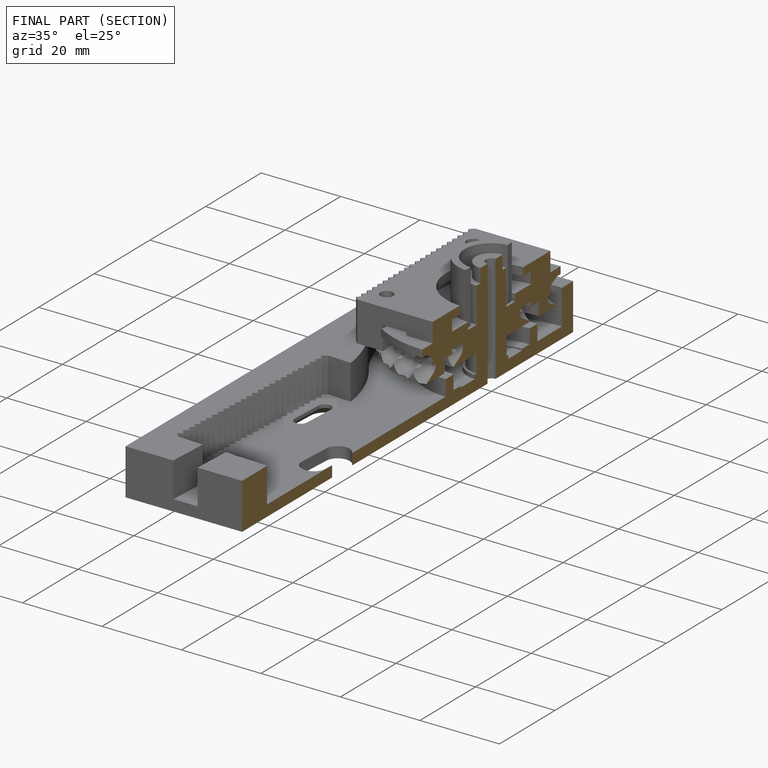
[diagram: finished part — half-section view (interior)]
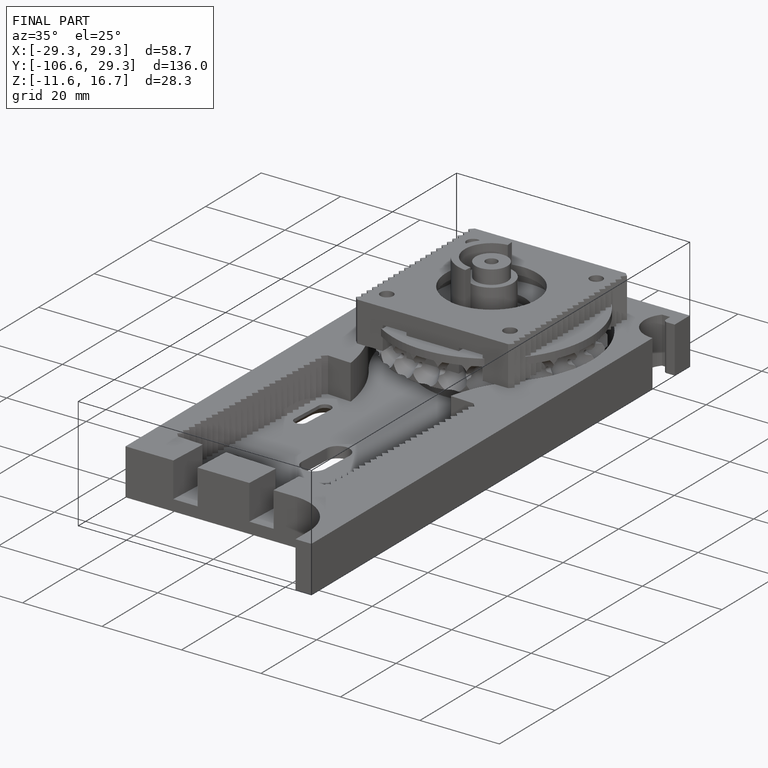
[diagram: finished part — iso view with bounding-box wireframe]
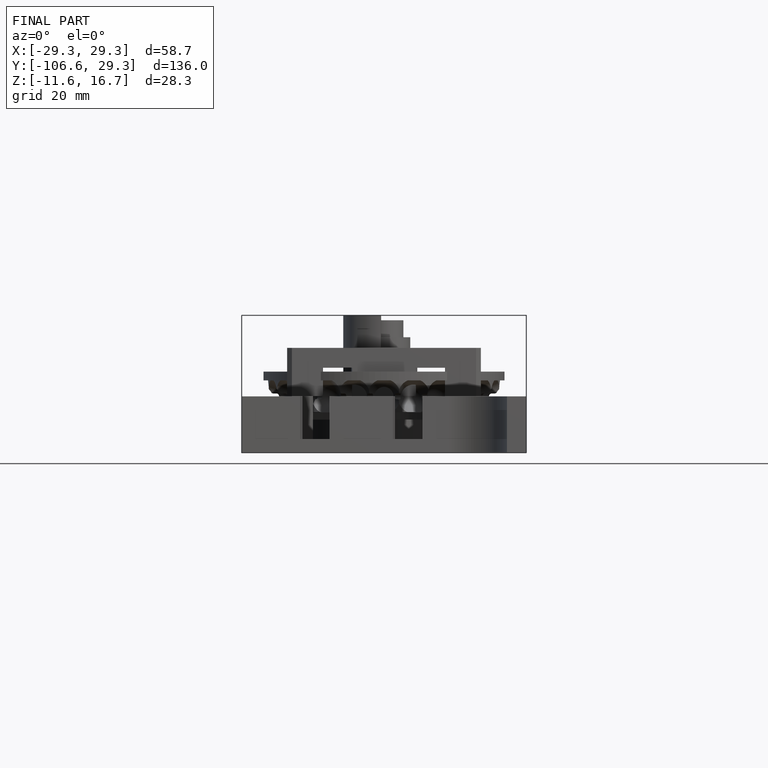
[diagram: finished part — front view with bounding-box wireframe]
